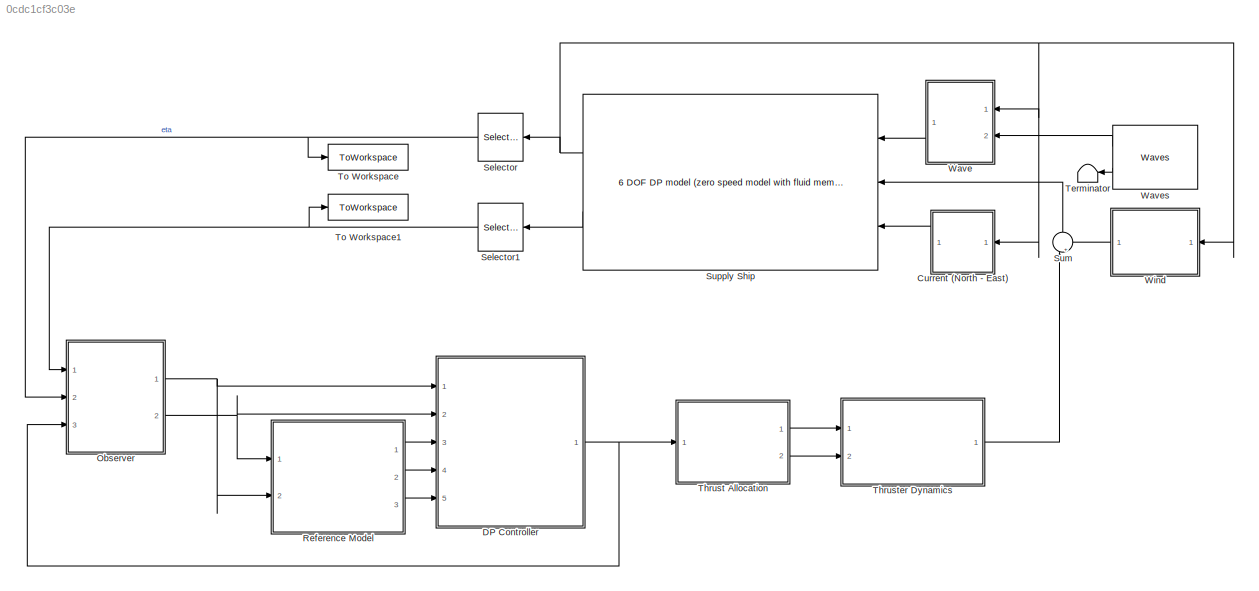
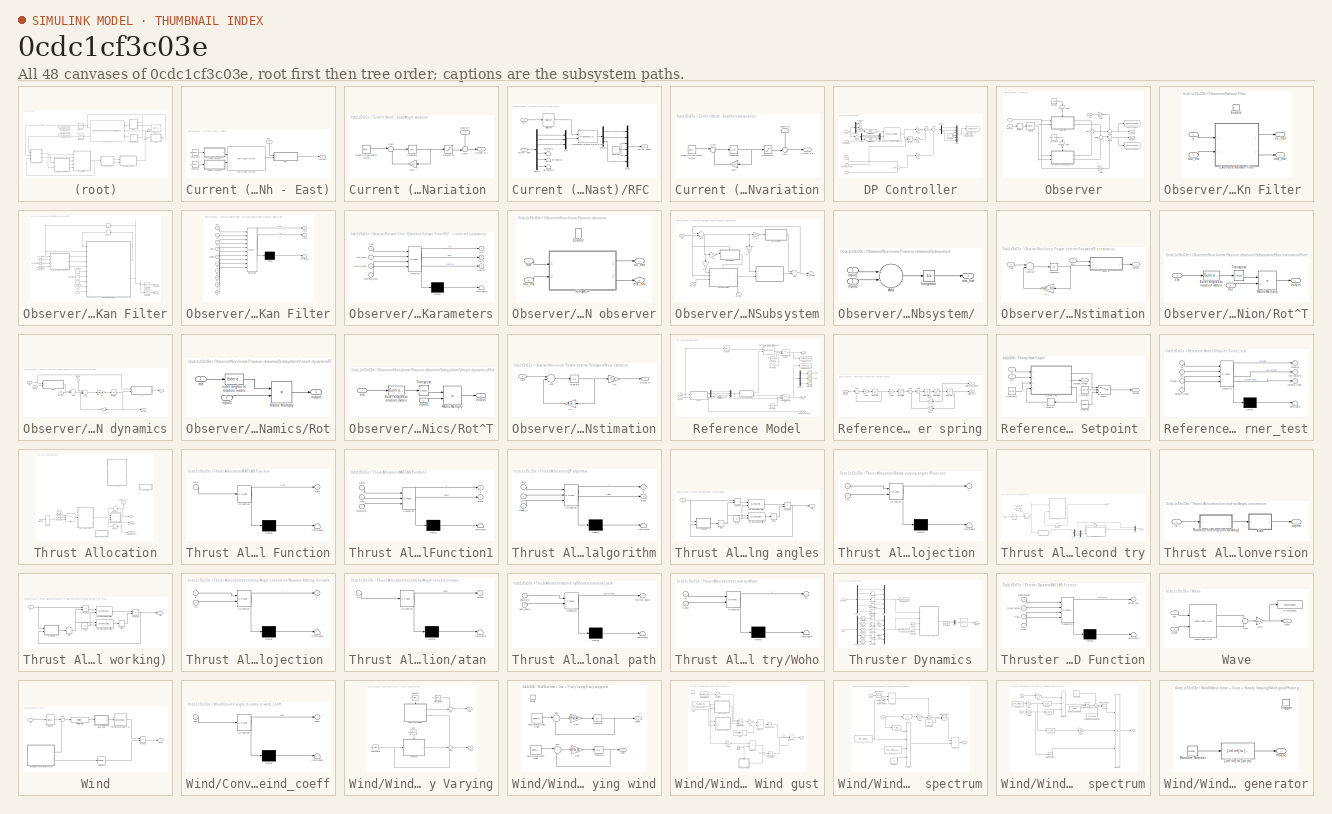
[diagram: thumbnail index - all 48 canvases of the model, root first then tree order]
MODEL slx_0cdc1cf3c03e
KIND model
CONFIG AbsTol = auto
CONFIG EnableMultiTasking = off
CONFIG FixedStep = 0.1
CONFIG MaxStep = auto
CONFIG MinStep = auto
CONFIG RelTol = 1e-3
CONFIG SampleTimeConstraint = Unconstrained
CONFIG Solver = FixedStepAuto
CONFIG SolverName = FixedStepAuto
CONFIG StartTime = 0.0
CONFIG StopTime = 1000
BLOCK [SubSystem] Current (North - East)
  Ports = [1, 1]
  RequestExecContextInheritance = off
BLOCK [SubSystem] Current (North - East)/Angle variation 
  Ports = [1, 1]
  RequestExecContextInheritance = off
BLOCK [Reference] Current (North - East)/Angle variation /Band-Limited White Noise  REF=simulink/Sources/Band-Limited
White Noise
  Ports = [0, 1]
  SourceBlock = simulink/Sources/Band-Limited\nWhite Noise
  SourceProductBaseCode = SL
  SourceProductName = Simulink
  SourceType = Band-Limited White Noise.
BLOCK [Outport] Current (North - East)/Angle variation /Current Dir
  IconDisplay = Port number
BLOCK [Gain] Current (North - East)/Angle variation /Gain
  Gain = 0.001
  OutDataTypeStr = Inherit: Inherit via internal rule
  ParamDataTypeStr = Inherit: Inherit via internal rule
  SaturateOnIntegerOverflow = off
BLOCK [Integrator] Current (North - East)/Angle variation /Integrator
  Ports = [1, 1]
BLOCK [Inport] Current (North - East)/Angle variation /Mean Dir
  IconDisplay = Port number
BLOCK [Saturate] Current (North - East)/Angle variation /Saturation
  InputPortMap = u0
  LowerLimit = -5
  Ports = [1, 1]
  UpperLimit = 5
BLOCK [Sum] Current (North - East)/Angle variation /Sum
  IconShape = round
  InputSameDT = off
  Inputs = |+-
  OutDataTypeStr = Inherit: Inherit via internal rule
  Ports = [2, 1]
  SaturateOnIntegerOverflow = off
BLOCK [Sum] Current (North - East)/Angle variation /Sum1
  IconShape = round
  InputSameDT = off
  Inputs = ++|
  OutDataTypeStr = Inherit: Inherit via internal rule
  Ports = [2, 1]
  SaturateOnIntegerOverflow = off
BLOCK [Constant] Current (North - East)/Constant
  Value = curr_mean_vel
BLOCK [Constant] Current (North - East)/Constant2
  Value = curr_mean_dir
BLOCK [Outport] Current (North - East)/Current
  IconDisplay = Port number
  VectorParamsAs1DForOutWhenUnconnected = off
BLOCK [Reference] Current (North - East)/North-East current  REF=marine_gnc/Environment/Current/North-East current  (lib defined in mdl_10d96c221ba8, mdl_45f1105420c6)
  Ports = [2, 1]
  SourceBlock = marine_gnc/Environment/Current/North-East current
  SourceProductName = MSS GNC
BLOCK [SubSystem] Current (North - East)/RFC 
  Ports = [2, 1]
  RequestExecContextInheritance = off
BLOCK [Constant] Current (North - East)/RFC /Constant
  Value = 0
BLOCK [Outport] Current (North - East)/RFC /Current (Body) 
  IconDisplay = Port number
BLOCK [Inport] Current (North - East)/RFC /Current (NED) 
  IconDisplay = Port number
  Port = 2
BLOCK [Demux] Current (North - East)/RFC /Demux
  DisplayOption = bar
  Outputs = 6
  Ports = [1, 6]
BLOCK [Demux] Current (North - East)/RFC /Demux2
  DisplayOption = bar
  Outputs = 3
  Ports = [1, 3]
BLOCK [Mux] Current (North - East)/RFC /Mux
  DisplayOption = bar
  Inputs = 3
  Ports = [3, 1]
BLOCK [Mux] Current (North - East)/RFC /Mux1
  DisplayOption = bar
  Inputs = 6
  Ports = [6, 1]
BLOCK [Selector] Current (North - East)/RFC /Selector
  IndexOptions = Index vector (dialog)
  Indices = [6]
  InputPortWidth = 6
  OutputSizes = 1
  Ports = [1, 1]
BLOCK [Terminator] Current (North - East)/RFC /Terminator
BLOCK [Terminator] Current (North - East)/RFC /Terminator1
BLOCK [Terminator] Current (North - East)/RFC /Terminator2
BLOCK [Reference] Current (North - East)/RFC /Transposed rotation matrix in yaw  REF=marine_gnc/Models/ Kinematics/Transposed rotation  (lib defined in mdl_10d96c221ba8, mdl_45f1105420c6)
 matrix in yaw
  Ports = [2, 1]
  SourceBlock = marine_gnc/Models/ Kinematics/Transposed rotation\n matrix in yaw
  SourceProductName = MSS GNC
BLOCK [Inport] Current (North - East)/RFC /eta
  IconDisplay = Port number
BLOCK [SubSystem] Current (North - East)/Velocity variation
  Ports = [1, 1]
  RequestExecContextInheritance = off
BLOCK [Reference] Current (North - East)/Velocity variation/Band-Limited White Noise  REF=simulink/Sources/Band-Limited
White Noise
  Ports = [0, 1]
  SourceBlock = simulink/Sources/Band-Limited\nWhite Noise
  SourceProductBaseCode = SL
  SourceProductName = Simulink
  SourceType = Band-Limited White Noise.
BLOCK [Outport] Current (North - East)/Velocity variation/Current Vel
  IconDisplay = Port number
BLOCK [Gain] Current (North - East)/Velocity variation/Gain
  Gain = 0.001
  OutDataTypeStr = Inherit: Inherit via internal rule
  ParamDataTypeStr = Inherit: Inherit via internal rule
  SaturateOnIntegerOverflow = off
BLOCK [Integrator] Current (North - East)/Velocity variation/Integrator
  Ports = [1, 1]
BLOCK [Inport] Current (North - East)/Velocity variation/Mean Vel
  IconDisplay = Port number
BLOCK [Saturate] Current (North - East)/Velocity variation/Saturation
  InputPortMap = u0
  LowerLimit = -0.002
  Ports = [1, 1]
  UpperLimit = 0.002
BLOCK [Sum] Current (North - East)/Velocity variation/Sum
  IconShape = round
  InputSameDT = off
  Inputs = |+-
  OutDataTypeStr = Inherit: Inherit via internal rule
  Ports = [2, 1]
  SaturateOnIntegerOverflow = off
BLOCK [Sum] Current (North - East)/Velocity variation/Sum1
  IconShape = round
  InputSameDT = off
  Inputs = ++|
  OutDataTypeStr = Inherit: Inherit via internal rule
  Ports = [2, 1]
  SaturateOnIntegerOverflow = off
BLOCK [Inport] Current (North - East)/eta
  IconDisplay = Port number
BLOCK [SubSystem] DP Controller
  Ports = [5, 1]
  RequestExecContextInheritance = off
BLOCK [Constant] DP Controller/Constant
  Value = 0
BLOCK [Demux] DP Controller/Demux
  DisplayOption = bar
  Outputs = 3
  Ports = [1, 3]
BLOCK [Demux] DP Controller/Demux1
  DisplayOption = bar
  Outputs = 3
  Ports = [1, 3]
BLOCK [Demux] DP Controller/Demux2
  DisplayOption = bar
  Outputs = 3
  Ports = [1, 3]
BLOCK [Gain] DP Controller/Gain
  Gain = Kd
  OutDataTypeStr = Inherit: Inherit via internal rule
  ParamDataTypeStr = Inherit: Inherit via internal rule
  SaturateOnIntegerOverflow = off
BLOCK [Gain] DP Controller/Gain1
  Gain = Ki
  OutDataTypeStr = Inherit: Inherit via internal rule
  ParamDataTypeStr = Inherit: Inherit via internal rule
  SaturateOnIntegerOverflow = off
BLOCK [Gain] DP Controller/Gain2
  Gain = Kp
  OutDataTypeStr = Inherit: Inherit via internal rule
  ParamDataTypeStr = Inherit: Inherit via internal rule
  SaturateOnIntegerOverflow = off
BLOCK [Integrator] DP Controller/Integrator
  ExternalReset = level hold
  Ports = [2, 1]
BLOCK [Mux] DP Controller/Mux
  DisplayOption = bar
  Inputs = 6
  Ports = [6, 1]
BLOCK [Mux] DP Controller/Mux1
  DisplayOption = bar
  Inputs = 3
  Ports = [3, 1]
BLOCK [Inport] DP Controller/Ref Vel 
  IconDisplay = Port number
  Port = 4
BLOCK [Sum] DP Controller/Sum
  IconShape = round
  InputSameDT = off
  Inputs = |++
  OutDataTypeStr = Inherit: Inherit via internal rule
  Ports = [2, 1]
  SaturateOnIntegerOverflow = off
BLOCK [Sum] DP Controller/Sum1
  IconShape = round
  InputSameDT = off
  Inputs = |++
  OutDataTypeStr = Inherit: Inherit via internal rule
  Ports = [2, 1]
  SaturateOnIntegerOverflow = off
BLOCK [Sum] DP Controller/Sum2
  IconShape = round
  InputSameDT = off
  Inputs = |-+
  OutDataTypeStr = Inherit: Inherit via internal rule
  Ports = [2, 1]
  SaturateOnIntegerOverflow = off
BLOCK [Sum] DP Controller/Sum3
  IconShape = round
  InputSameDT = off
  Inputs = +|-
  OutDataTypeStr = Inherit: Inherit via internal rule
  Ports = [2, 1]
  SaturateOnIntegerOverflow = off
BLOCK [Terminator] DP Controller/Terminator
BLOCK [Terminator] DP Controller/Terminator1
BLOCK [ToWorkspace] DP Controller/To Workspace
  FixptAsFi = on
  MaxDataPoints = inf
  Ports = [1]
  SampleTime = -1
  VariableName = controller_force_out
BLOCK [Reference] DP Controller/Transposed rotation matrix in yaw  REF=marine_gnc/Models/ Kinematics/Transposed rotation  (lib defined in mdl_10d96c221ba8, mdl_45f1105420c6)
 matrix in yaw
  Ports = [2, 1]
  SourceBlock = marine_gnc/Models/ Kinematics/Transposed rotation\n matrix in yaw
  SourceProductName = MSS GNC
BLOCK [Reference] DP Controller/[-inf inf] to [-pi pi]1  REF=marine_gnc/Utilities/Math Operations/[-inf inf] to [-pi pi]  (lib defined in mdl_10d96c221ba8, mdl_45f1105420c6)
  Ports = [1, 1]
  SourceBlock = marine_gnc/Utilities/Math Operations/[-inf inf] to [-pi pi]
  SourceProductName = MSS GNC
  SourceType = [-inf inf] to [-pi pi]
BLOCK [Reference] DP Controller/[-inf inf] to [-pi pi]2  REF=marine_gnc/Utilities/Math Operations/[-inf inf] to [-pi pi]  (lib defined in mdl_10d96c221ba8, mdl_45f1105420c6)
  Ports = [1, 1]
  SourceBlock = marine_gnc/Utilities/Math Operations/[-inf inf] to [-pi pi]
  SourceProductName = MSS GNC
  SourceType = [-inf inf] to [-pi pi]
BLOCK [Inport] DP Controller/eta
  IconDisplay = Port number
  Port = 2
  PortDimensions = 3
BLOCK [Inport] DP Controller/eta set point
  IconDisplay = Port number
  Port = 3
BLOCK [Inport] DP Controller/nu
  IconDisplay = Port number
  PortDimensions = 3
BLOCK [Inport] DP Controller/setpoint_change
  IconDisplay = Port number
  Port = 5
BLOCK [Outport] DP Controller/tau (body frame)
  IconDisplay = Port number
  VectorParamsAs1DForOutWhenUnconnected = off
BLOCK [SubSystem] Observer
  Ports = [3, 2]
  RequestExecContextInheritance = off
BLOCK [Constant] Observer/Constant
  Value = use_kalman
BLOCK [Constant] Observer/Constant1
  Value = 1-use_kalman
BLOCK [Gain] Observer/Gain1
  Gain = observer_on
  OutDataTypeStr = Inherit: Inherit via internal rule
  ParamDataTypeStr = Inherit: Inherit via internal rule
  SaturateOnIntegerOverflow = off
BLOCK [Gain] Observer/Gain2
  Gain = observer_on
  OutDataTypeStr = Inherit: Inherit via internal rule
  ParamDataTypeStr = Inherit: Inherit via internal rule
  SaturateOnIntegerOverflow = off
BLOCK [Gain] Observer/Gain6
  Gain = 1-observer_on
  OutDataTypeStr = Inherit: Inherit via internal rule
  ParamDataTypeStr = Inherit: Inherit via internal rule
  SaturateOnIntegerOverflow = off
BLOCK [Gain] Observer/Gain7
  Gain = 1-observer_on
  OutDataTypeStr = Inherit: Inherit via internal rule
  ParamDataTypeStr = Inherit: Inherit via internal rule
  SaturateOnIntegerOverflow = off
BLOCK [SubSystem] Observer/Kalman Filter 
  Ports = [2, 2, 1]
  RequestExecContextInheritance = off
BLOCK [EnablePort] Observer/Kalman Filter /Enable
  Ports = []
  StatesWhenEnabling = reset
BLOCK [SubSystem] Observer/Kalman Filter /Extended Kalman Filter
  Ports = [2, 2]
  RequestExecContextInheritance = off
BLOCK [Constant] Observer/Kalman Filter /Extended Kalman Filter/Constant
  Value = Q
BLOCK [Constant] Observer/Kalman Filter /Extended Kalman Filter/Constant1
  Value = R_KF
BLOCK [Constant] Observer/Kalman Filter /Extended Kalman Filter/Constant2
  Value = H
BLOCK [Constant] Observer/Kalman Filter /Extended Kalman Filter/Constant3
  Value = Phi_stack
BLOCK [Constant] Observer/Kalman Filter /Extended Kalman Filter/Constant4
  Value = Delta_stack
BLOCK [Constant] Observer/Kalman Filter /Extended Kalman Filter/Constant5
  Value = Gamma_stack
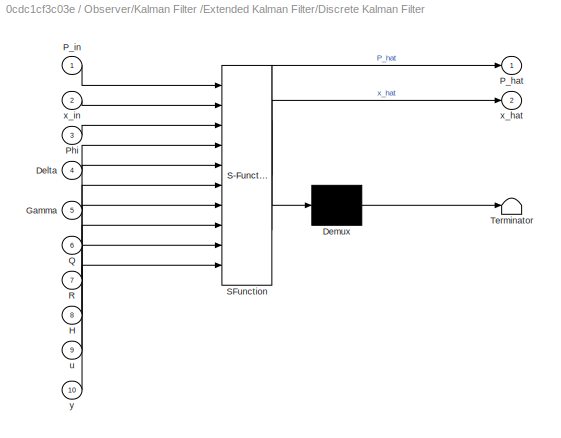
BLOCK [SubSystem] Observer/Kalman Filter /Extended Kalman Filter/Discrete Kalman Filter
  ErrorFcn = Stateflow.Translate.translate
  PermitHierarchicalResolution = ExplicitOnly
  Ports = [10, 2]
  RequestExecContextInheritance = off
  SFBlockType = MATLAB Function
  TreatAsAtomicUnit = on
BLOCK [Demux] Observer/Kalman Filter /Extended Kalman Filter/Discrete Kalman Filter/ Demux 
  DisplayOption = bar
  Outputs = 1
  Ports = [1, 1]
BLOCK [S-Function] Observer/Kalman Filter /Extended Kalman Filter/Discrete Kalman Filter/ SFunction 
  EnableBusSupport = on
  FunctionName = sf_sfun
  PortCounts = [10 3]
  Ports = [10, 3]
  SFcnIsStateOwnerBlock = off
  SFunctionDeploymentMode = off
  Tag = Stateflow S-Function 3
BLOCK [Terminator] Observer/Kalman Filter /Extended Kalman Filter/Discrete Kalman Filter/ Terminator 
BLOCK [Inport] Observer/Kalman Filter /Extended Kalman Filter/Discrete Kalman Filter/Delta
  IconDisplay = Port number
  Port = 4
BLOCK [Inport] Observer/Kalman Filter /Extended Kalman Filter/Discrete Kalman Filter/Gamma
  IconDisplay = Port number
  Port = 5
BLOCK [Inport] Observer/Kalman Filter /Extended Kalman Filter/Discrete Kalman Filter/H
  IconDisplay = Port number
  Port = 8
BLOCK [Outport] Observer/Kalman Filter /Extended Kalman Filter/Discrete Kalman Filter/P_hat
  IconDisplay = Port number
BLOCK [Inport] Observer/Kalman Filter /Extended Kalman Filter/Discrete Kalman Filter/P_in
  IconDisplay = Port number
BLOCK [Inport] Observer/Kalman Filter /Extended Kalman Filter/Discrete Kalman Filter/Phi
  IconDisplay = Port number
  Port = 3
BLOCK [Inport] Observer/Kalman Filter /Extended Kalman Filter/Discrete Kalman Filter/Q
  IconDisplay = Port number
  Port = 6
BLOCK [Inport] Observer/Kalman Filter /Extended Kalman Filter/Discrete Kalman Filter/R
  IconDisplay = Port number
  Port = 7
BLOCK [Inport] Observer/Kalman Filter /Extended Kalman Filter/Discrete Kalman Filter/u
  IconDisplay = Port number
  Port = 9
BLOCK [Outport] Observer/Kalman Filter /Extended Kalman Filter/Discrete Kalman Filter/x_hat
  IconDisplay = Port number
  Port = 2
BLOCK [Inport] Observer/Kalman Filter /Extended Kalman Filter/Discrete Kalman Filter/x_in
  IconDisplay = Port number
  Port = 2
BLOCK [Inport] Observer/Kalman Filter /Extended Kalman Filter/Discrete Kalman Filter/y
  IconDisplay = Port number
  Port = 10
BLOCK [SubSystem] Observer/Kalman Filter /Extended Kalman Filter/EKF - Linearized parameters
  ErrorFcn = Stateflow.Translate.translate
  PermitHierarchicalResolution = ExplicitOnly
  Ports = [4, 3]
  RequestExecContextInheritance = off
  SFBlockType = MATLAB Function
  TreatAsAtomicUnit = on
BLOCK [Demux] Observer/Kalman Filter /Extended Kalman Filter/EKF - Linearized parameters/ Demux 
  Outputs = 1
  Ports = [1, 1]
BLOCK [S-Function] Observer/Kalman Filter /Extended Kalman Filter/EKF - Linearized parameters/ SFunction 
  EnableBusSupport = on
  FunctionName = sf_sfun
  PortCounts = [4 4]
  Ports = [4, 4]
  SFcnIsStateOwnerBlock = off
  SFunctionDeploymentMode = off
  Tag = Stateflow S-Function 13
BLOCK [Terminator] Observer/Kalman Filter /Extended Kalman Filter/EKF - Linearized parameters/ Terminator 
BLOCK [Outport] Observer/Kalman Filter /Extended Kalman Filter/EKF - Linearized parameters/Delta
  IconDisplay = Port number
  Port = 2
BLOCK [Inport] Observer/Kalman Filter /Extended Kalman Filter/EKF - Linearized parameters/Delta_stack
  IconDisplay = Port number
  Port = 3
BLOCK [Outport] Observer/Kalman Filter /Extended Kalman Filter/EKF - Linearized parameters/Gamma
  IconDisplay = Port number
  Port = 3
BLOCK [Inport] Observer/Kalman Filter /Extended Kalman Filter/EKF - Linearized parameters/Gamma_stack
  IconDisplay = Port number
  Port = 4
BLOCK [Outport] Observer/Kalman Filter /Extended Kalman Filter/EKF - Linearized parameters/Phi
  IconDisplay = Port number
BLOCK [Inport] Observer/Kalman Filter /Extended Kalman Filter/EKF - Linearized parameters/Phi_stack
  IconDisplay = Port number
  Port = 2
BLOCK [Inport] Observer/Kalman Filter /Extended Kalman Filter/EKF - Linearized parameters/x_hat
  IconDisplay = Port number
BLOCK [Memory] Observer/Kalman Filter /Extended Kalman Filter/Memory
  InitialCondition = zeros(1,15)
BLOCK [Memory] Observer/Kalman Filter /Extended Kalman Filter/Memory1
  InitialCondition = eye(15)*0.9
BLOCK [Selector] Observer/Kalman Filter /Extended Kalman Filter/Selector
  IndexOptions = Index vector (dialog)
  Indices = [13 14 15]
  InputPortWidth = 15
  OutputSizes = 1
  Ports = [1, 1]
BLOCK [Selector] Observer/Kalman Filter /Extended Kalman Filter/Selector1
  IndexOptions = Index vector (dialog)
  Indices = [7 8 9 ]
  InputPortWidth = 15
  OutputSizes = 1
  Ports = [1, 1]
BLOCK [Outport] Observer/Kalman Filter /Extended Kalman Filter/eta_hat
  IconDisplay = Port number
  Port = 2
BLOCK [Outport] Observer/Kalman Filter /Extended Kalman Filter/nu_hat
  IconDisplay = Port number
BLOCK [Inport] Observer/Kalman Filter /Extended Kalman Filter/u
  IconDisplay = Port number
  Port = 2
BLOCK [Inport] Observer/Kalman Filter /Extended Kalman Filter/y
  IconDisplay = Port number
BLOCK [Outport] Observer/Kalman Filter /eta_hat
  IconDisplay = Port number
  Port = 2
BLOCK [Outport] Observer/Kalman Filter /nu_hat
  IconDisplay = Port number
BLOCK [Inport] Observer/Kalman Filter /tau_est
  IconDisplay = Port number
  Port = 2
BLOCK [Inport] Observer/Kalman Filter /y
  IconDisplay = Port number
BLOCK [Memory] Observer/Memory
BLOCK [SubSystem] Observer/Non-linear Passive observer
  Commented = on
  Ports = [2, 2, 1]
  RequestExecContextInheritance = off
BLOCK [EnablePort] Observer/Non-linear Passive observer/Enable
  Ports = []
  StatesWhenEnabling = reset
BLOCK [SubSystem] Observer/Non-linear Passive observer/Subsystem
  Ports = [2, 2]
  RequestExecContextInheritance = off
BLOCK [SubSystem] Observer/Non-linear Passive observer/Subsystem/ 
  Ports = [2, 1]
  RequestExecContextInheritance = off
BLOCK [Sum] Observer/Non-linear Passive observer/Subsystem/ /Add
  InputSameDT = off
  OutDataTypeStr = Inherit: Inherit via internal rule
  Ports = [2, 1]
  SaturateOnIntegerOverflow = off
BLOCK [Integrator] Observer/Non-linear Passive observer/Subsystem/ /Integrator
  Ports = [1, 1]
BLOCK [Outport] Observer/Non-linear Passive observer/Subsystem/ /eta_hat
  IconDisplay = Port number
BLOCK [Inport] Observer/Non-linear Passive observer/Subsystem/ /input1
  IconDisplay = Port number
BLOCK [Inport] Observer/Non-linear Passive observer/Subsystem/ /input2
  IconDisplay = Port number
  Port = 2
BLOCK [Sum] Observer/Non-linear Passive observer/Subsystem/Add
  InputSameDT = off
  OutDataTypeStr = Inherit: Inherit via internal rule
  Ports = [2, 1]
  SaturateOnIntegerOverflow = off
BLOCK [Sum] Observer/Non-linear Passive observer/Subsystem/Add1
  InputSameDT = off
  Inputs = -+
  OutDataTypeStr = Inherit: Inherit via internal rule
  Ports = [2, 1]
  SaturateOnIntegerOverflow = off
BLOCK [SubSystem] Observer/Non-linear Passive observer/Subsystem/Bias estimation
  PortSchema = {"entries":[{"content":{"sides":[{"content":{"connectorIds":["In1"]},"type":"ConnectorPlacement.EquallySpacedRectSide","uuid":"fb609290-747b-4f88-a1dd-5b79b9706ab7"},{"content":{"connectorIds":["Out1"],"side":"RIGHT"},"type":"ConnectorPlacement.EquallySpacedRectSide","uuid":"4016d859-7bbf-446e-85bc-2c5f4265ad24"},{"content":{"connectorIds":["In2"],"side":"TOP"},"type":"ConnectorPlacement.EquallySp...<+247ch>
  Ports = [2, 1]
  RequestExecContextInheritance = off
BLOCK [Integrator] Observer/Non-linear Passive observer/Subsystem/Bias estimation/Integrator
  Ports = [1, 1]
BLOCK [SubSystem] Observer/Non-linear Passive observer/Subsystem/Bias estimation/Rot^T
  Ports = [2, 1]
  RequestExecContextInheritance = off
BLOCK [Reference] Observer/Non-linear Passive observer/Subsystem/Bias estimation/Rot^T/Euler angles to rotation matrix  REF=marine_gnc/Models/ Kinematics/Euler angles to  (lib defined in mdl_10d96c221ba8, mdl_45f1105420c6)
rotation matrix
  Ports = [1, 1]
  SourceBlock = marine_gnc/Models/ Kinematics/Euler angles to\nrotation matrix
  SourceProductName = MSS GNC
  SourceType = Euler2R
BLOCK [Inport] Observer/Non-linear Passive observer/Subsystem/Bias estimation/Rot^T/In2
  IconDisplay = Port number
  Port = 2
BLOCK [Product] Observer/Non-linear Passive observer/Subsystem/Bias estimation/Rot^T/Matrix Multiply
  InputSameDT = off
  Multiplication = Matrix(*)
  OutDataTypeStr = Inherit: Inherit via internal rule
  Ports = [2, 1]
  RndMeth = Floor
  SaturateOnIntegerOverflow = off
BLOCK [Math] Observer/Non-linear Passive observer/Subsystem/Bias estimation/Rot^T/Transpose
  Operator = transpose
  Ports = [1, 1]
  SignedPower = off
BLOCK [Inport] Observer/Non-linear Passive observer/Subsystem/Bias estimation/Rot^T/eta
  IconDisplay = Port number
BLOCK [Outport] Observer/Non-linear Passive observer/Subsystem/Bias estimation/Rot^T/output
  IconDisplay = Port number
BLOCK [Sum] Observer/Non-linear Passive observer/Subsystem/Bias estimation/Subtract
  InputSameDT = off
  Inputs = +-
  OutDataTypeStr = Inherit: Inherit via internal rule
  Ports = [2, 1]
  SaturateOnIntegerOverflow = off
BLOCK [Gain] Observer/Non-linear Passive observer/Subsystem/Bias estimation/T^-1
  Gain = inv(T_b)
  Multiplication = Matrix(K*u)
  OutDataTypeStr = Inherit: Inherit via internal rule
  ParamDataTypeStr = Inherit: Inherit via internal rule
  SaturateOnIntegerOverflow = off
BLOCK [Inport] Observer/Non-linear Passive observer/Subsystem/Bias estimation/eta
  IconDisplay = Port number
  Port = 2
BLOCK [Inport] Observer/Non-linear Passive observer/Subsystem/Bias estimation/input
  IconDisplay = Port number
BLOCK [Outport] Observer/Non-linear Passive observer/Subsystem/Bias estimation/output
  IconDisplay = Port number
BLOCK [Gain] Observer/Non-linear Passive observer/Subsystem/K1
  Gain = K1
  Multiplication = Matrix(K*u)
  OutDataTypeStr = Inherit: Inherit via internal rule
  ParamDataTypeStr = Inherit: Inherit via internal rule
  SaturateOnIntegerOverflow = off
BLOCK [Gain] Observer/Non-linear Passive observer/Subsystem/K2
  Gain = K2
  Multiplication = Matrix(K*u)
  OutDataTypeStr = Inherit: Inherit via internal rule
  ParamDataTypeStr = Inherit: Inherit via internal rule
  SaturateOnIntegerOverflow = off
BLOCK [Gain] Observer/Non-linear Passive observer/Subsystem/K3
  Gain = K3
  Multiplication = Matrix(K*u)
  OutDataTypeStr = Inherit: Inherit via internal rule
  ParamDataTypeStr = Inherit: Inherit via internal rule
  SaturateOnIntegerOverflow = off
BLOCK [Gain] Observer/Non-linear Passive observer/Subsystem/K4
  Gain = K4
  Multiplication = Matrix(K*u)
  OutDataTypeStr = Inherit: Inherit via internal rule
  ParamDataTypeStr = Inherit: Inherit via internal rule
  SaturateOnIntegerOverflow = off
BLOCK [SubSystem] Observer/Non-linear Passive observer/Subsystem/Vessel dynamics
  PortSchema = {"entries":[{"content":{"sides":[{"content":{"connectorIds":["In1","In2","In3"]},"type":"ConnectorPlacement.EquallySpacedRectSide","uuid":"8c38ab18-b34d-4500-9674-9470dff34018"},{"content":{"connectorIds":["Out1"],"side":"RIGHT"},"type":"ConnectorPlacement.EquallySpacedRectSide","uuid":"47c03509-189c-40d1-8765-b41afcba396b"},{"content":{"connectorIds":["In4"],"side":"TOP"},"type":"ConnectorPlaceme...<+409ch>
  Ports = [4, 2]
  RequestExecContextInheritance = off
BLOCK [Sum] Observer/Non-linear Passive observer/Subsystem/Vessel dynamics/Add
  InputSameDT = off
  OutDataTypeStr = Inherit: Inherit via internal rule
  Ports = [2, 1]
  SaturateOnIntegerOverflow = off
BLOCK [Sum] Observer/Non-linear Passive observer/Subsystem/Vessel dynamics/Add1
  InputSameDT = off
  Inputs = ++-
  OutDataTypeStr = Inherit: Inherit via internal rule
  Ports = [3, 1]
  SaturateOnIntegerOverflow = off
BLOCK [Gain] Observer/Non-linear Passive observer/Subsystem/Vessel dynamics/D
  Gain = D
  Multiplication = Matrix(K*u)
  OutDataTypeStr = Inherit: Inherit via internal rule
  ParamDataTypeStr = Inherit: Inherit via internal rule
  SaturateOnIntegerOverflow = off
BLOCK [Integrator] Observer/Non-linear Passive observer/Subsystem/Vessel dynamics/Integrator
  Ports = [1, 1]
BLOCK [Gain] Observer/Non-linear Passive observer/Subsystem/Vessel dynamics/M^-1
  Gain = inv(M)
  Multiplication = Matrix(K*u)
  OutDataTypeStr = Inherit: Inherit via internal rule
  ParamDataTypeStr = Inherit: Inherit via internal rule
  SaturateOnIntegerOverflow = off
BLOCK [SubSystem] Observer/Non-linear Passive observer/Subsystem/Vessel dynamics/Rot
  Ports = [2, 1]
  RequestExecContextInheritance = off
BLOCK [Product] Observer/Non-linear Passive observer/Subsystem/Vessel dynamics/Rot/Matrix Multiply
  InputSameDT = off
  Multiplication = Matrix(*)
  OutDataTypeStr = Inherit: Inherit via internal rule
  Ports = [2, 1]
  RndMeth = Floor
  SaturateOnIntegerOverflow = off
BLOCK [Inport] Observer/Non-linear Passive observer/Subsystem/Vessel dynamics/Rot/eta
  IconDisplay = Port number
BLOCK [Reference] Observer/Non-linear Passive observer/Subsystem/Vessel dynamics/Rot/euler angles to rotation matrix  REF=marine_gnc/Models/ Kinematics/Euler angles to  (lib defined in mdl_10d96c221ba8, mdl_45f1105420c6)
rotation matrix
  Ports = [1, 1]
  SourceBlock = marine_gnc/Models/ Kinematics/Euler angles to\nrotation matrix
  SourceProductName = MSS GNC
  SourceType = Euler2R
BLOCK [Inport] Observer/Non-linear Passive observer/Subsystem/Vessel dynamics/Rot/input1
  IconDisplay = Port number
  Port = 2
BLOCK [Outport] Observer/Non-linear Passive observer/Subsystem/Vessel dynamics/Rot/output
  IconDisplay = Port number
BLOCK [SubSystem] Observer/Non-linear Passive observer/Subsystem/Vessel dynamics/Rot^T
  Ports = [2, 1]
  RequestExecContextInheritance = off
BLOCK [Reference] Observer/Non-linear Passive observer/Subsystem/Vessel dynamics/Rot^T/Euler angles to rotation matrix  REF=marine_gnc/Models/ Kinematics/Euler angles to  (lib defined in mdl_10d96c221ba8, mdl_45f1105420c6)
rotation matrix
  Ports = [1, 1]
  SourceBlock = marine_gnc/Models/ Kinematics/Euler angles to\nrotation matrix
  SourceProductName = MSS GNC
  SourceType = Euler2R
BLOCK [Product] Observer/Non-linear Passive observer/Subsystem/Vessel dynamics/Rot^T/Matrix Multiply
  InputSameDT = off
  Multiplication = Matrix(*)
  OutDataTypeStr = Inherit: Inherit via internal rule
  Ports = [2, 1]
  RndMeth = Floor
  SaturateOnIntegerOverflow = off
BLOCK [Math] Observer/Non-linear Passive observer/Subsystem/Vessel dynamics/Rot^T/Transpose
  Operator = transpose
  Ports = [1, 1]
  SignedPower = off
BLOCK [Inport] Observer/Non-linear Passive observer/Subsystem/Vessel dynamics/Rot^T/eta
  IconDisplay = Port number
BLOCK [Inport] Observer/Non-linear Passive observer/Subsystem/Vessel dynamics/Rot^T/input1
  IconDisplay = Port number
  Port = 2
BLOCK [Outport] Observer/Non-linear Passive observer/Subsystem/Vessel dynamics/Rot^T/output
  IconDisplay = Port number
BLOCK [Inport] Observer/Non-linear Passive observer/Subsystem/Vessel dynamics/eta
  IconDisplay = Port number
  Port = 2
BLOCK [Inport] Observer/Non-linear Passive observer/Subsystem/Vessel dynamics/input1
  IconDisplay = Port number
BLOCK [Inport] Observer/Non-linear Passive observer/Subsystem/Vessel dynamics/input3
  IconDisplay = Port number
  Port = 4
BLOCK [Outport] Observer/Non-linear Passive observer/Subsystem/Vessel dynamics/nu_hat
  IconDisplay = Port number
  Port = 2
BLOCK [Outport] Observer/Non-linear Passive observer/Subsystem/Vessel dynamics/out
  IconDisplay = Port number
BLOCK [Inport] Observer/Non-linear Passive observer/Subsystem/Vessel dynamics/tau_est
  IconDisplay = Port number
  Port = 3
BLOCK [SubSystem] Observer/Non-linear Passive observer/Subsystem/Wave estimation
  Ports = [1, 1]
  RequestExecContextInheritance = off
BLOCK [Sum] Observer/Non-linear Passive observer/Subsystem/Wave estimation/Add
  InputSameDT = off
  OutDataTypeStr = Inherit: Inherit via internal rule
  Ports = [2, 1]
  SaturateOnIntegerOverflow = off
BLOCK [Gain] Observer/Non-linear Passive observer/Subsystem/Wave estimation/Aw
  Gain = A_w
  Multiplication = Matrix(K*u)
  OutDataTypeStr = Inherit: Inherit via internal rule
  ParamDataTypeStr = Inherit: Inherit via internal rule
  SaturateOnIntegerOverflow = off
BLOCK [Gain] Observer/Non-linear Passive observer/Subsystem/Wave estimation/Cw
  Gain = C_w
  Multiplication = Matrix(K*u)
  OutDataTypeStr = Inherit: Inherit via internal rule
  ParamDataTypeStr = Inherit: Inherit via internal rule
  SaturateOnIntegerOverflow = off
BLOCK [Integrator] Observer/Non-linear Passive observer/Subsystem/Wave estimation/Integrator
  Ports = [1, 1]
BLOCK [Outport] Observer/Non-linear Passive observer/Subsystem/Wave estimation/eta_hat_w
  IconDisplay = Port number
BLOCK [Inport] Observer/Non-linear Passive observer/Subsystem/Wave estimation/input
  IconDisplay = Port number
BLOCK [Inport] Observer/Non-linear Passive observer/Subsystem/eta
  IconDisplay = Port number
BLOCK [Outport] Observer/Non-linear Passive observer/Subsystem/eta_hat_total
  IconDisplay = Port number
  Port = 2
BLOCK [Outport] Observer/Non-linear Passive observer/Subsystem/nu_hat
  IconDisplay = Port number
BLOCK [Inport] Observer/Non-linear Passive observer/Subsystem/tau_est
  IconDisplay = Port number
  Port = 2
BLOCK [Inport] Observer/Non-linear Passive observer/eta
  IconDisplay = Port number
BLOCK [Outport] Observer/Non-linear Passive observer/eta_hat
  IconDisplay = Port number
  Port = 2
BLOCK [Outport] Observer/Non-linear Passive observer/nu_hat
  IconDisplay = Port number
BLOCK [Inport] Observer/Non-linear Passive observer/tau_est
  IconDisplay = Port number
  Port = 2
BLOCK [Selector] Observer/Selector
  IndexOptions = Index vector (dialog)
  Indices = [1 2 6]
  InputPortWidth = 6
  OutputSizes = 1
  Ports = [1, 1]
BLOCK [Sum] Observer/Sum
  IconShape = round
  InputSameDT = off
  Inputs = +|+
  OutDataTypeStr = Inherit: Inherit via internal rule
  Ports = [2, 1]
  SaturateOnIntegerOverflow = off
BLOCK [Sum] Observer/Sum1
  IconShape = round
  InputSameDT = off
  Inputs = +|+
  OutDataTypeStr = Inherit: Inherit via internal rule
  Ports = [2, 1]
  SaturateOnIntegerOverflow = off
BLOCK [Sum] Observer/Sum2
  IconShape = round
  InputSameDT = off
  Inputs = |++
  OutDataTypeStr = Inherit: Inherit via internal rule
  Ports = [2, 1]
  SaturateOnIntegerOverflow = off
BLOCK [Sum] Observer/Sum3
  IconShape = round
  InputSameDT = off
  Inputs = ++|
  OutDataTypeStr = Inherit: Inherit via internal rule
  Ports = [2, 1]
  SaturateOnIntegerOverflow = off
BLOCK [ToWorkspace] Observer/To Workspace
  FixptAsFi = on
  MaxDataPoints = inf
  Ports = [1]
  SampleTime = -1
  VariableName = nu_hat_out
BLOCK [ToWorkspace] Observer/To Workspace1
  FixptAsFi = on
  MaxDataPoints = inf
  Ports = [1]
  SampleTime = -1
  VariableName = eta_hat_out
BLOCK [Outport] Observer/eta_hat
  IconDisplay = Port number
  Port = 2
  VectorParamsAs1DForOutWhenUnconnected = off
BLOCK [Outport] Observer/nu_hat
  IconDisplay = Port number
  VectorParamsAs1DForOutWhenUnconnected = off
BLOCK [Inport] Observer/tau_est
  IconDisplay = Port number
  Port = 3
BLOCK [Inport] Observer/y
  IconDisplay = Port number
  Port = 2
BLOCK [Inport] Observer/y_dot
  IconDisplay = Port number
BLOCK [SubSystem] Reference Model
  Ports = [2, 3]
  RequestExecContextInheritance = off
BLOCK [Constant] Reference Model/Constant
  Value = ref_model_on
BLOCK [Constant] Reference Model/Constant1
  Value = ref_model_on
BLOCK [Constant] Reference Model/Constant2
  Value = 0
BLOCK [Demux] Reference Model/Demux
  DisplayOption = bar
  Outputs = 3
  Ports = [1, 3]
BLOCK [Demux] Reference Model/Demux1
  Commented = on
  DisplayOption = bar
  Outputs = 3
  Ports = [1, 3]
BLOCK [SubSystem] Reference Model/Mass damper spring
  Ports = [1, 2]
  RequestExecContextInheritance = off
BLOCK [Gain] Reference Model/Mass damper spring/Gain
  Gain = w_n
  OutDataTypeStr = Inherit: Inherit via internal rule
  ParamDataTypeStr = Inherit: Inherit via internal rule
  SaturateOnIntegerOverflow = off
BLOCK [Gain] Reference Model/Mass damper spring/Gain1
  Gain = w_n.^2
  OutDataTypeStr = Inherit: Inherit via internal rule
  ParamDataTypeStr = Inherit: Inherit via internal rule
  SaturateOnIntegerOverflow = off
BLOCK [Gain] Reference Model/Mass damper spring/Gain2
  Gain = w_n.^2
  OutDataTypeStr = Inherit: Inherit via internal rule
  ParamDataTypeStr = Inherit: Inherit via internal rule
  SaturateOnIntegerOverflow = off
BLOCK [Gain] Reference Model/Mass damper spring/Gain3
  Gain = 2*w_n.*zeta
  OutDataTypeStr = Inherit: Inherit via internal rule
  ParamDataTypeStr = Inherit: Inherit via internal rule
  SaturateOnIntegerOverflow = off
BLOCK [Integrator] Reference Model/Mass damper spring/Integrator
  Ports = [1, 1]
BLOCK [Integrator] Reference Model/Mass damper spring/Integrator1
  Ports = [1, 1]
BLOCK [Integrator] Reference Model/Mass damper spring/Integrator2
  Ports = [1, 1]
BLOCK [Outport] Reference Model/Mass damper spring/Reference 
  IconDisplay = Port number
  Port = 2
BLOCK [Outport] Reference Model/Mass damper spring/Reference Velocity 
  IconDisplay = Port number
BLOCK [Saturate] Reference Model/Mass damper spring/Saturation
  InputPortMap = u0
  LowerLimit = -25
  Ports = [1, 1]
  UpperLimit = 25
BLOCK [Saturate] Reference Model/Mass damper spring/Saturation1
  InputPortMap = u0
  LowerLimit = -25
  Ports = [1, 1]
  UpperLimit = 25
BLOCK [Inport] Reference Model/Mass damper spring/Setpoint 
  IconDisplay = Port number
BLOCK [Sum] Reference Model/Mass damper spring/Sum
  IconShape = round
  InputSameDT = off
  Inputs = |+-
  OutDataTypeStr = Inherit: Inherit via internal rule
  Ports = [2, 1]
  SaturateOnIntegerOverflow = off
BLOCK [Sum] Reference Model/Mass damper spring/Sum1
  IconShape = round
  InputSameDT = off
  Inputs = |+-
  OutDataTypeStr = Inherit: Inherit via internal rule
  Ports = [2, 1]
  SaturateOnIntegerOverflow = off
BLOCK [Sum] Reference Model/Mass damper spring/Sum2
  IconShape = round
  InputSameDT = off
  Inputs = |+-
  OutDataTypeStr = Inherit: Inherit via internal rule
  Ports = [2, 1]
  SaturateOnIntegerOverflow = off
BLOCK [Mux] Reference Model/Mux
  DisplayOption = bar
  Inputs = 3
  Ports = [3, 1]
BLOCK [Outport] Reference Model/Ref 
  IconDisplay = Port number
  VectorParamsAs1DForOutWhenUnconnected = off
BLOCK [Outport] Reference Model/Ref Vel 
  IconDisplay = Port number
  Port = 2
  VectorParamsAs1DForOutWhenUnconnected = off
BLOCK [Scope] Reference Model/Scope
  Commented = on
  Floating = off
  NumInputPorts = 1
  Ports = [1]
  ScopeSpecificationString = Simulink.scopes.TimeScopeBlockCfg('CurrentConfiguration', extmgr.ConfigurationSet(extmgr.Configuration('Core','General UI',true),extmgr.Configuration('Core','Source UI',true),extmgr.Configuration('Sources','WiredSimulink',true,'DataLoggingVariableName','ScopeData1'),extmgr.Configuration('Visuals','Time Domain',true,'SerializedDisplays',{struct('MinYLimReal','-56.25','MaxYLimReal','6.25','YLabelRea...<+1353ch>
BLOCK [Scope] Reference Model/Scope1
  Commented = on
  Floating = off
  NumInputPorts = 1
  Ports = [1]
  ScopeSpecificationString = Simulink.scopes.TimeScopeBlockCfg('CurrentConfiguration', extmgr.ConfigurationSet(extmgr.Configuration('Core','General UI',true),extmgr.Configuration('Core','Source UI',true),extmgr.Configuration('Sources','WiredSimulink',true,'DataLoggingVariableName','ScopeData2'),extmgr.Configuration('Visuals','Time Domain',true,'SerializedDisplays',{struct('MinYLimReal','-6.25','MaxYLimReal','56.25','YLabelRea...<+1376ch>
BLOCK [Scope] Reference Model/Scope2
  Commented = on
  Floating = off
  NumInputPorts = 1
  Ports = [1]
  ScopeSpecificationString = Simulink.scopes.TimeScopeBlockCfg('CurrentConfiguration', extmgr.ConfigurationSet(extmgr.Configuration('Core','General UI',true),extmgr.Configuration('Core','Source UI',true),extmgr.Configuration('Sources','WiredSimulink',true),extmgr.Configuration('Visuals','Time Domain',true,'SerializedDisplays',{struct('MinYLimReal','-0.88357','MaxYLimReal','0.09817','YLabelReal','','MinYLimMag','0.00000','MaxY...<+1328ch>
BLOCK [Selector] Reference Model/Selector
  IndexOptions = Index vector (dialog)
  Indices = [3]
  InputPortWidth = 3
  OutputSizes = 1
  Ports = [1, 1]
BLOCK [SubSystem] Reference Model/Setpoint 
  Ports = [2, 2]
  RequestExecContextInheritance = off
BLOCK [Constant] Reference Model/Setpoint /Constant
  Value = setpoint
BLOCK [Constant] Reference Model/Setpoint /Constant1
  Value = corner_test
BLOCK [Constant] Reference Model/Setpoint /Constant3
  Value = corners
BLOCK [SubSystem] Reference Model/Setpoint /Corner_test
  ErrorFcn = Stateflow.Translate.translate
  PermitHierarchicalResolution = ExplicitOnly
  Ports = [4, 3]
  RequestExecContextInheritance = off
  SFBlockType = MATLAB Function
  TreatAsAtomicUnit = on
BLOCK [Demux] Reference Model/Setpoint /Corner_test/ Demux 
  DisplayOption = bar
  Outputs = 1
  Ports = [1, 1]
BLOCK [S-Function] Reference Model/Setpoint /Corner_test/ SFunction 
  EnableBusSupport = on
  FunctionName = sf_sfun
  PortCounts = [4 4]
  Ports = [4, 4]
  SFcnIsStateOwnerBlock = off
  SFunctionDeploymentMode = off
  Tag = Stateflow S-Function 2
BLOCK [Terminator] Reference Model/Setpoint /Corner_test/ Terminator 
BLOCK [Inport] Reference Model/Setpoint /Corner_test/corners
  IconDisplay = Port number
  Port = 3
BLOCK [Inport] Reference Model/Setpoint /Corner_test/eta
  IconDisplay = Port number
  Port = 2
BLOCK [Outport] Reference Model/Setpoint /Corner_test/new_setpoint
  IconDisplay = Port number
  Port = 2
BLOCK [Inport] Reference Model/Setpoint /Corner_test/nu
  IconDisplay = Port number
BLOCK [Outport] Reference Model/Setpoint /Corner_test/setpoint
  IconDisplay = Port number
BLOCK [Outport] Reference Model/Setpoint /Corner_test/setpoint_index
  IconDisplay = Port number
  Port = 3
BLOCK [Inport] Reference Model/Setpoint /Corner_test/setpoint_index 
  IconDisplay = Port number
  Port = 4
BLOCK [Memory] Reference Model/Setpoint /Memory
  InitialCondition = 1
BLOCK [Outport] Reference Model/Setpoint /Setpoint 
  IconDisplay = Port number
BLOCK [Switch] Reference Model/Setpoint /Switch
  Criteria = u2 > Threshold
  InputSameDT = off
  SaturateOnIntegerOverflow = off
BLOCK [Inport] Reference Model/Setpoint /eta 
  IconDisplay = Port number
  Port = 2
BLOCK [Inport] Reference Model/Setpoint /nu
  IconDisplay = Port number
BLOCK [Outport] Reference Model/Setpoint /setpoint_change
  IconDisplay = Port number
  Port = 2
BLOCK [ToWorkspace] Reference Model/To Workspace
  FixptAsFi = on
  MaxDataPoints = inf
  Ports = [1]
  SampleTime = -1
  VariableName = ref_vel_out
BLOCK [ToWorkspace] Reference Model/To Workspace 
  FixptAsFi = on
  MaxDataPoints = inf
  Ports = [1]
  SampleTime = -1
  VariableName = ref_pos_out
BLOCK [Reference] Reference Model/Transposed rotation matrix in yaw  REF=marine_gnc/Models/ Kinematics/Transposed rotation  (lib defined in mdl_10d96c221ba8, mdl_45f1105420c6)
 matrix in yaw
  Ports = [2, 1]
  SourceBlock = marine_gnc/Models/ Kinematics/Transposed rotation\n matrix in yaw
  SourceProductName = MSS GNC
BLOCK [Switch] Reference Model/Use Ref model or not
  Criteria = u2 > Threshold
  InputSameDT = off
  SaturateOnIntegerOverflow = off
BLOCK [Switch] Reference Model/Use Ref model or not (vel) 
  Criteria = u2 > Threshold
  InputSameDT = off
  SaturateOnIntegerOverflow = off
BLOCK [Reference] Reference Model/[-inf inf] to [-pi pi]  REF=marine_gnc/Utilities/Math Operations/[-inf inf] to [-pi pi]  (lib defined in mdl_10d96c221ba8, mdl_45f1105420c6)
  Ports = [1, 1]
  SourceBlock = marine_gnc/Utilities/Math Operations/[-inf inf] to [-pi pi]
  SourceProductName = MSS GNC
  SourceType = [-inf inf] to [-pi pi]
BLOCK [Inport] Reference Model/eta_hat
  IconDisplay = Port number
BLOCK [Inport] Reference Model/nu_hat
  IconDisplay = Port number
  Port = 2
BLOCK [Outport] Reference Model/setpoint_change
  IconDisplay = Port number
  Port = 3
BLOCK [Selector] Selector
  IndexOptions = Index vector (dialog)
  Indices = [1 2 6]
  InputPortWidth = 6
  OutputSizes = 1
  Ports = [1, 1]
BLOCK [Selector] Selector1
  IndexOptions = Index vector (dialog)
  Indices = [1 2 6]
  InputPortWidth = 6
  OutputSizes = 1
  Ports = [1, 1]
BLOCK [Sum] Sum
  IconShape = round
  InputSameDT = off
  Inputs = |++
  OutDataTypeStr = Inherit: Inherit via internal rule
  Ports = [2, 1]
  SaturateOnIntegerOverflow = off
BLOCK [Reference] Supply Ship  REF=marine_hydro/Hydro Library/6 DOF DP model
 (zero speed model with fluid memory)
  Ports = [3, 2]
  SourceBlock = marine_hydro/Hydro Library/6 DOF DP model\n (zero speed model with fluid memory)
  SourceProductName = MSS Hydro
  SourceType = 6 DOF zero speed model
BLOCK [Terminator] Terminator
BLOCK [SubSystem] Thrust Allocation
  Ports = [1, 2]
  RequestExecContextInheritance = off
BLOCK [Selector] Thrust Allocation/6 to 3 DOF
  IndexOptions = Index vector (dialog)
  Indices = [1 2 6]
  InputPortWidth = 6
  OutputSizes = 1
  Ports = [1, 1]
BLOCK [Constant] Thrust Allocation/Constant
  Value = 10^4*[1 1 1]
BLOCK [Constant] Thrust Allocation/Constant1
  Value = constant_dp
BLOCK [SubSystem] Thrust Allocation/MATLAB Function
  ErrorFcn = Stateflow.Translate.translate
  PermitHierarchicalResolution = ExplicitOnly
  Ports = [1, 1]
  RequestExecContextInheritance = off
  SFBlockType = MATLAB Function
  TreatAsAtomicUnit = on
BLOCK [Demux] Thrust Allocation/MATLAB Function/ Demux 
  DisplayOption = bar
  Outputs = 1
  Ports = [1, 1]
BLOCK [S-Function] Thrust Allocation/MATLAB Function/ SFunction 
  EnableBusSupport = on
  FunctionName = sf_sfun
  PortCounts = [1 2]
  Ports = [1, 2]
  SFcnIsStateOwnerBlock = off
  SFunctionDeploymentMode = off
  Tag = Stateflow S-Function 10
BLOCK [Terminator] Thrust Allocation/MATLAB Function/ Terminator 
BLOCK [Inport] Thrust Allocation/MATLAB Function/tau_c
  IconDisplay = Port number
BLOCK [Outport] Thrust Allocation/MATLAB Function/u_ext
  IconDisplay = Port number
  VectorParamsAs1DForOutWhenUnconnected = off
BLOCK [SubSystem] Thrust Allocation/MATLAB Function1
  ErrorFcn = Stateflow.Translate.translate
  PermitHierarchicalResolution = ExplicitOnly
  Ports = [3, 2]
  RequestExecContextInheritance = off
  SFBlockType = MATLAB Function
  TreatAsAtomicUnit = on
BLOCK [Demux] Thrust Allocation/MATLAB Function1/ Demux 
  DisplayOption = bar
  Outputs = 1
  Ports = [1, 1]
BLOCK [S-Function] Thrust Allocation/MATLAB Function1/ SFunction 
  EnableBusSupport = on
  FunctionName = sf_sfun
  PortCounts = [3 3]
  Ports = [3, 3]
  SFcnIsStateOwnerBlock = off
  SFunctionDeploymentMode = off
  Tag = Stateflow S-Function 11
BLOCK [Terminator] Thrust Allocation/MATLAB Function1/ Terminator 
BLOCK [Outport] Thrust Allocation/MATLAB Function1/alpha
  IconDisplay = Port number
  Port = 2
  VectorParamsAs1DForOutWhenUnconnected = off
BLOCK [Inport] Thrust Allocation/MATLAB Function1/alpha_prev
  IconDisplay = Port number
  Port = 3
BLOCK [Outport] Thrust Allocation/MATLAB Function1/u
  IconDisplay = Port number
BLOCK [Inport] Thrust Allocation/MATLAB Function1/u_ext
  IconDisplay = Port number
  Port = 2
BLOCK [Inport] Thrust Allocation/MATLAB Function1/u_prev
  IconDisplay = Port number
BLOCK [Memory] Thrust Allocation/Memory2
BLOCK [Memory] Thrust Allocation/Memory3
BLOCK [SubSystem] Thrust Allocation/QP-algorithm
  Commented = on
  ErrorFcn = Stateflow.Translate.translate
  PermitHierarchicalResolution = ExplicitOnly
  Ports = [3, 2]
  RequestExecContextInheritance = off
  SFBlockType = MATLAB Function
  TreatAsAtomicUnit = on
BLOCK [Demux] Thrust Allocation/QP-algorithm/ Demux 
  DisplayOption = bar
  Outputs = 1
  Ports = [1, 1]
BLOCK [S-Function] Thrust Allocation/QP-algorithm/ SFunction 
  EnableBusSupport = on
  FunctionName = sf_sfun
  PortCounts = [3 3]
  Ports = [3, 3]
  SFcnIsStateOwnerBlock = off
  SFunctionDeploymentMode = off
  Tag = Stateflow S-Function 5
BLOCK [Terminator] Thrust Allocation/QP-algorithm/ Terminator 
BLOCK [Outport] Thrust Allocation/QP-algorithm/alpha
  IconDisplay = Port number
  Port = 2
BLOCK [Inport] Thrust Allocation/QP-algorithm/alpha_in
  IconDisplay = Port number
  Port = 3
BLOCK [Inport] Thrust Allocation/QP-algorithm/tau_d
  IconDisplay = Port number
BLOCK [Outport] Thrust Allocation/QP-algorithm/u
  IconDisplay = Port number
BLOCK [Inport] Thrust Allocation/QP-algorithm/u_in
  IconDisplay = Port number
  Port = 2
BLOCK [SubSystem] Thrust Allocation/Slowly varying angles
  Commented = on
  Ports = [1, 1]
  RequestExecContextInheritance = off
BLOCK [Constant] Thrust Allocation/Slowly varying angles/Freq 
  Value = 0.1
BLOCK [Product] Thrust Allocation/Slowly varying angles/Product
  InputSameDT = off
  OutDataTypeStr = Inherit: Inherit via internal rule
  Ports = [2, 1]
  RndMeth = Floor
  SaturateOnIntegerOverflow = off
BLOCK [Product] Thrust Allocation/Slowly varying angles/Product1
  InputSameDT = off
  OutDataTypeStr = Inherit: Inherit via internal rule
  Ports = [2, 1]
  RndMeth = Floor
  SaturateOnIntegerOverflow = off
BLOCK [SubSystem] Thrust Allocation/Slowly varying angles/Projection 
  ErrorFcn = Stateflow.Translate.translate
  PermitHierarchicalResolution = ExplicitOnly
  Ports = [2, 1]
  RequestExecContextInheritance = off
  SFBlockType = MATLAB Function
  TreatAsAtomicUnit = on
BLOCK [Demux] Thrust Allocation/Slowly varying angles/Projection / Demux 
  DisplayOption = bar
  Outputs = 1
  Ports = [1, 1]
BLOCK [S-Function] Thrust Allocation/Slowly varying angles/Projection / SFunction 
  EnableBusSupport = on
  FunctionName = sf_sfun
  PortCounts = [2 2]
  Ports = [2, 2]
  SFcnIsStateOwnerBlock = off
  SFunctionDeploymentMode = off
  Tag = Stateflow S-Function 12
BLOCK [Terminator] Thrust Allocation/Slowly varying angles/Projection / Terminator 
BLOCK [Inport] Thrust Allocation/Slowly varying angles/Projection /Tfs
  IconDisplay = Port number
  Port = 2
BLOCK [Inport] Thrust Allocation/Slowly varying angles/Projection /u
  IconDisplay = Port number
BLOCK [Outport] Thrust Allocation/Slowly varying angles/Projection /y
  IconDisplay = Port number
BLOCK [Signum] Thrust Allocation/Slowly varying angles/Sign
BLOCK [Signum] Thrust Allocation/Slowly varying angles/Sign1
BLOCK [Outport] Thrust Allocation/Slowly varying angles/Tfs
  IconDisplay = Port number
BLOCK [Reference] Thrust Allocation/Slowly varying angles/Varying Lowpass Filter  REF=cstblocks/Linear Parameter Varying/Varying Lowpass Filter
  Ports = [2, 1]
  SourceBlock = cstblocks/Linear Parameter Varying/Varying Lowpass Filter
  SourceProductBaseCode = CT
  SourceProductName = Control System Toolbox
  SourceType = Varying Lowpass Filter
BLOCK [Reference] Thrust Allocation/Slowly varying angles/Varying Lowpass Filter1  REF=cstblocks/Linear Parameter Varying/Varying Lowpass Filter
  Ports = [2, 1]
  SourceBlock = cstblocks/Linear Parameter Varying/Varying Lowpass Filter
  SourceProductBaseCode = CT
  SourceProductName = Control System Toolbox
  SourceType = Varying Lowpass Filter
BLOCK [Inport] Thrust Allocation/Slowly varying angles/u
  IconDisplay = Port number
BLOCK [Switch] Thrust Allocation/Switch
  Criteria = u2 > Threshold
  InputSameDT = off
  SaturateOnIntegerOverflow = off
BLOCK [ToWorkspace] Thrust Allocation/To Workspace
  FixptAsFi = on
  MaxDataPoints = inf
  Ports = [1]
  SampleTime = -1
  VariableName = u_c
BLOCK [ToWorkspace] Thrust Allocation/To Workspace1
  FixptAsFi = on
  MaxDataPoints = inf
  Ports = [1]
  SampleTime = -1
  VariableName = alpha_c
BLOCK [Outport] Thrust Allocation/alpha [rad]
  IconDisplay = Port number
  Port = 2
  VectorParamsAs1DForOutWhenUnconnected = off
BLOCK [SubSystem] Thrust Allocation/second try
  Commented = on
  Ports = [1, 2]
  RequestExecContextInheritance = off
BLOCK [SubSystem] Thrust Allocation/second try/Angle conversion
  Ports = [1, 1]
  RequestExecContextInheritance = off
BLOCK [SubSystem] Thrust Allocation/second try/Angle conversion/Rotation filtering (not working)
  Ports = [1, 1]
  RequestExecContextInheritance = off
BLOCK [Constant] Thrust Allocation/second try/Angle conversion/Rotation filtering (not working)/Freq 
  Value = 0.1
BLOCK [Product] Thrust Allocation/second try/Angle conversion/Rotation filtering (not working)/Product
  InputSameDT = off
  OutDataTypeStr = Inherit: Inherit via internal rule
  Ports = [2, 1]
  RndMeth = Floor
  SaturateOnIntegerOverflow = off
BLOCK [Product] Thrust Allocation/second try/Angle conversion/Rotation filtering (not working)/Product1
  InputSameDT = off
  OutDataTypeStr = Inherit: Inherit via internal rule
  Ports = [2, 1]
  RndMeth = Floor
  SaturateOnIntegerOverflow = off
BLOCK [SubSystem] Thrust Allocation/second try/Angle conversion/Rotation filtering (not working)/Projection 
  ErrorFcn = Stateflow.Translate.translate
  PermitHierarchicalResolution = ExplicitOnly
  Ports = [2, 1]
  RequestExecContextInheritance = off
  SFBlockType = MATLAB Function
  TreatAsAtomicUnit = on
BLOCK [Demux] Thrust Allocation/second try/Angle conversion/Rotation filtering (not working)/Projection / Demux 
  DisplayOption = bar
  Outputs = 1
  Ports = [1, 1]
BLOCK [S-Function] Thrust Allocation/second try/Angle conversion/Rotation filtering (not working)/Projection / SFunction 
  EnableBusSupport = on
  FunctionName = sf_sfun
  PortCounts = [2 2]
  Ports = [2, 2]
  SFcnIsStateOwnerBlock = off
  SFunctionDeploymentMode = off
  Tag = Stateflow S-Function 8
BLOCK [Terminator] Thrust Allocation/second try/Angle conversion/Rotation filtering (not working)/Projection / Terminator 
BLOCK [Inport] Thrust Allocation/second try/Angle conversion/Rotation filtering (not working)/Projection /Tfs
  IconDisplay = Port number
  Port = 2
BLOCK [Inport] Thrust Allocation/second try/Angle conversion/Rotation filtering (not working)/Projection /u
  IconDisplay = Port number
BLOCK [Outport] Thrust Allocation/second try/Angle conversion/Rotation filtering (not working)/Projection /y
  IconDisplay = Port number
BLOCK [Signum] Thrust Allocation/second try/Angle conversion/Rotation filtering (not working)/Sign
BLOCK [Signum] Thrust Allocation/second try/Angle conversion/Rotation filtering (not working)/Sign1
BLOCK [Outport] Thrust Allocation/second try/Angle conversion/Rotation filtering (not working)/Tfs
  IconDisplay = Port number
BLOCK [Reference] Thrust Allocation/second try/Angle conversion/Rotation filtering (not working)/Varying Lowpass Filter  REF=cstblocks/Linear Parameter Varying/Varying Lowpass Filter
  Ports = [2, 1]
  SourceBlock = cstblocks/Linear Parameter Varying/Varying Lowpass Filter
  SourceProductBaseCode = CT
  SourceProductName = Control System Toolbox
  SourceType = Varying Lowpass Filter
BLOCK [Reference] Thrust Allocation/second try/Angle conversion/Rotation filtering (not working)/Varying Lowpass Filter1  REF=cstblocks/Linear Parameter Varying/Varying Lowpass Filter
  Ports = [2, 1]
  SourceBlock = cstblocks/Linear Parameter Varying/Varying Lowpass Filter
  SourceProductBaseCode = CT
  SourceProductName = Control System Toolbox
  SourceType = Varying Lowpass Filter
BLOCK [Inport] Thrust Allocation/second try/Angle conversion/Rotation filtering (not working)/u
  IconDisplay = Port number
BLOCK [Outport] Thrust Allocation/second try/Angle conversion/alpha
  IconDisplay = Port number
BLOCK [SubSystem] Thrust Allocation/second try/Angle conversion/atan 
  ErrorFcn = Stateflow.Translate.translate
  PermitHierarchicalResolution = ExplicitOnly
  Ports = [1, 1]
  RequestExecContextInheritance = off
  SFBlockType = MATLAB Function
  TreatAsAtomicUnit = on
BLOCK [Demux] Thrust Allocation/second try/Angle conversion/atan / Demux 
  DisplayOption = bar
  Outputs = 1
  Ports = [1, 1]
BLOCK [S-Function] Thrust Allocation/second try/Angle conversion/atan / SFunction 
  EnableBusSupport = on
  FunctionName = sf_sfun
  PortCounts = [1 2]
  Ports = [1, 2]
  SFcnIsStateOwnerBlock = off
  SFunctionDeploymentMode = off
  Tag = Stateflow S-Function 9
BLOCK [Terminator] Thrust Allocation/second try/Angle conversion/atan / Terminator 
BLOCK [Inport] Thrust Allocation/second try/Angle conversion/atan /Tfs
  IconDisplay = Port number
BLOCK [Outport] Thrust Allocation/second try/Angle conversion/atan /alpha
  IconDisplay = Port number
BLOCK [Inport] Thrust Allocation/second try/Angle conversion/u
  IconDisplay = Port number
BLOCK [Demux] Thrust Allocation/second try/Demux1
  DisplayOption = bar
  Outputs = 5
  Ports = [1, 5]
BLOCK [Inport] Thrust Allocation/second try/In1
  IconDisplay = Port number
BLOCK [Memory] Thrust Allocation/second try/Memory
BLOCK [Memory] Thrust Allocation/second try/Memory1
BLOCK [Mux] Thrust Allocation/second try/Mux1
  DisplayOption = bar
  Ports = [4, 1]
BLOCK [Mux] Thrust Allocation/second try/Mux2
  DisplayOption = bar
  Inputs = 2
  Ports = [2, 1]
BLOCK [Outport] Thrust Allocation/second try/Out1
  IconDisplay = Port number
BLOCK [Product] Thrust Allocation/second try/Product
  InputSameDT = off
  Multiplication = Matrix(*)
  OutDataTypeStr = Inherit: Inherit via internal rule
  Ports = [2, 1]
  RndMeth = Floor
  SaturateOnIntegerOverflow = off
BLOCK [Constant] Thrust Allocation/second try/Pseudo-Inverse
  Value = B_pseudo
BLOCK [Selector] Thrust Allocation/second try/Selector
  IndexOptions = Index vector (dialog)
  Indices = [1 2 6]
  InputPortWidth = 6
  OutputSizes = 1
  Ports = [1, 1]
BLOCK [SubSystem] Thrust Allocation/second try/Shortest rotational path
  ErrorFcn = Stateflow.Translate.translate
  PermitHierarchicalResolution = ExplicitOnly
  Ports = [2, 1]
  RequestExecContextInheritance = off
  SFBlockType = MATLAB Function
  TreatAsAtomicUnit = on
BLOCK [Demux] Thrust Allocation/second try/Shortest rotational path/ Demux 
  DisplayOption = bar
  Outputs = 1
  Ports = [1, 1]
BLOCK [S-Function] Thrust Allocation/second try/Shortest rotational path/ SFunction 
  EnableBusSupport = on
  FunctionName = sf_sfun
  PortCounts = [2 2]
  Ports = [2, 2]
  SFcnIsStateOwnerBlock = off
  SFunctionDeploymentMode = off
  Tag = Stateflow S-Function 6
BLOCK [Terminator] Thrust Allocation/second try/Shortest rotational path/ Terminator 
BLOCK [Inport] Thrust Allocation/second try/Shortest rotational path/angle_old
  IconDisplay = Port number
BLOCK [Inport] Thrust Allocation/second try/Shortest rotational path/next_angle
  IconDisplay = Port number
  Port = 2
BLOCK [Outport] Thrust Allocation/second try/Shortest rotational path/optimal_angle
  IconDisplay = Port number
BLOCK [SubSystem] Thrust Allocation/second try/Woho
  ErrorFcn = Stateflow.Translate.translate
  PermitHierarchicalResolution = ExplicitOnly
  Ports = [2, 1]
  RequestExecContextInheritance = off
  SFBlockType = MATLAB Function
  TreatAsAtomicUnit = on
BLOCK [Demux] Thrust Allocation/second try/Woho/ Demux 
  DisplayOption = bar
  Outputs = 1
  Ports = [1, 1]
BLOCK [S-Function] Thrust Allocation/second try/Woho/ SFunction 
  EnableBusSupport = on
  FunctionName = sf_sfun
  PortCounts = [2 2]
  Ports = [2, 2]
  SFcnIsStateOwnerBlock = off
  SFunctionDeploymentMode = off
  Tag = Stateflow S-Function 7
BLOCK [Terminator] Thrust Allocation/second try/Woho/ Terminator 
BLOCK [Outport] Thrust Allocation/second try/Woho/u
  IconDisplay = Port number
BLOCK [Inport] Thrust Allocation/second try/Woho/u_i
  IconDisplay = Port number
BLOCK [Inport] Thrust Allocation/second try/Woho/u_past
  IconDisplay = Port number
  Port = 2
BLOCK [Outport] Thrust Allocation/second try/u
  IconDisplay = Port number
  Port = 2
BLOCK [Inport] Thrust Allocation/tau_d
  IconDisplay = Port number
BLOCK [Outport] Thrust Allocation/u 
  IconDisplay = Port number
  VectorParamsAs1DForOutWhenUnconnected = off
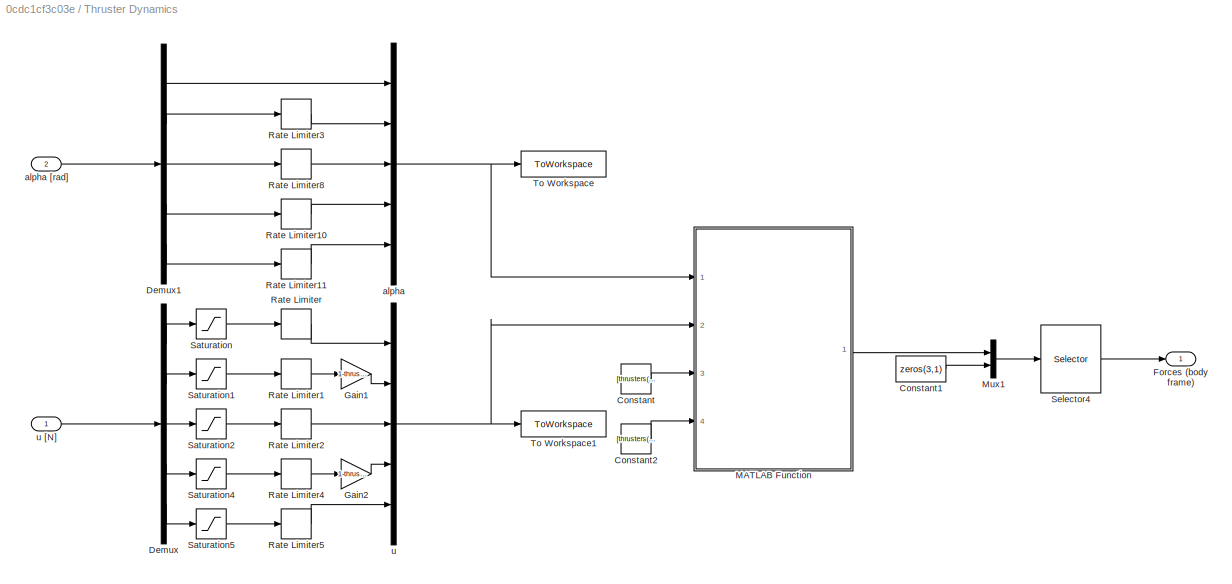
BLOCK [SubSystem] Thruster Dynamics
  Ports = [2, 1]
  RequestExecContextInheritance = off
BLOCK [Constant] Thruster Dynamics/Constant
  Value = [thrusters(1).xposition, thrusters(2).xposition, thrusters(3).xposition, thrusters(4).xposition, thrusters(5).xposition]
BLOCK [Constant] Thruster Dynamics/Constant1
  Value = zeros(3,1)
BLOCK [Constant] Thruster Dynamics/Constant2
  Value = [thrusters(1).yposition, thrusters(2).yposition, thrusters(3).yposition, thrusters(4).yposition, thrusters(5).yposition]
BLOCK [Demux] Thruster Dynamics/Demux
  DisplayOption = bar
  Outputs = 5
  Ports = [1, 5]
BLOCK [Demux] Thruster Dynamics/Demux1
  DisplayOption = bar
  Outputs = 5
  Ports = [1, 5]
BLOCK [Outport] Thruster Dynamics/Forces (body frame) 
  IconDisplay = Port number
  VectorParamsAs1DForOutWhenUnconnected = off
BLOCK [Gain] Thruster Dynamics/Gain1
  Gain = 1-thrusterfault
  OutDataTypeStr = Inherit: Inherit via internal rule
  ParamDataTypeStr = Inherit: Inherit via internal rule
  SaturateOnIntegerOverflow = off
BLOCK [Gain] Thruster Dynamics/Gain2
  Gain = 1-thrusterfault
  OutDataTypeStr = Inherit: Inherit via internal rule
  ParamDataTypeStr = Inherit: Inherit via internal rule
  SaturateOnIntegerOverflow = off
BLOCK [SubSystem] Thruster Dynamics/MATLAB Function
  ErrorFcn = Stateflow.Translate.translate
  PermitHierarchicalResolution = ExplicitOnly
  Ports = [4, 1]
  RequestExecContextInheritance = off
  SFBlockType = MATLAB Function
  TreatAsAtomicUnit = on
BLOCK [Demux] Thruster Dynamics/MATLAB Function/ Demux 
  DisplayOption = bar
  Outputs = 1
  Ports = [1, 1]
BLOCK [S-Function] Thruster Dynamics/MATLAB Function/ SFunction 
  EnableBusSupport = on
  FunctionName = sf_sfun
  PortCounts = [4 2]
  Ports = [4, 2]
  SFcnIsStateOwnerBlock = off
  SFunctionDeploymentMode = off
  Tag = Stateflow S-Function 4
BLOCK [Terminator] Thruster Dynamics/MATLAB Function/ Terminator 
BLOCK [Inport] Thruster Dynamics/MATLAB Function/PosX
  IconDisplay = Port number
  Port = 3
BLOCK [Inport] Thruster Dynamics/MATLAB Function/PosY
  IconDisplay = Port number
  Port = 4
BLOCK [Outport] Thruster Dynamics/MATLAB Function/actual_tau
  IconDisplay = Port number
  VectorParamsAs1DForOutWhenUnconnected = off
BLOCK [Inport] Thruster Dynamics/MATLAB Function/alpha_actual
  IconDisplay = Port number
BLOCK [Inport] Thruster Dynamics/MATLAB Function/thrust_actual
  IconDisplay = Port number
  Port = 2
BLOCK [Mux] Thruster Dynamics/Mux1
  DisplayOption = bar
  Inputs = 2
  Ports = [2, 1]
BLOCK [RateLimiter] Thruster Dynamics/Rate Limiter
  FallingSlewLimit = -thrusters(1).rate
  RisingSlewLimit = thrusters(1).rate
  SampleTimeMode = inherited
BLOCK [RateLimiter] Thruster Dynamics/Rate Limiter1
  FallingSlewLimit = -thrusters(2).rate
  RisingSlewLimit = thrusters(2).rate
  SampleTimeMode = inherited
BLOCK [RateLimiter] Thruster Dynamics/Rate Limiter10
  FallingSlewLimit = -thrusters(4).rotationspeed
  RisingSlewLimit = thrusters(4).rotationspeed
  SampleTimeMode = inherited
BLOCK [RateLimiter] Thruster Dynamics/Rate Limiter11
  FallingSlewLimit = -thrusters(5).rotationspeed
  RisingSlewLimit = thrusters(5).rotationspeed
  SampleTimeMode = inherited
BLOCK [RateLimiter] Thruster Dynamics/Rate Limiter2
  FallingSlewLimit = -thrusters(3).rate
  RisingSlewLimit = thrusters(3).rate
  SampleTimeMode = inherited
BLOCK [RateLimiter] Thruster Dynamics/Rate Limiter3
  FallingSlewLimit = -thrusters(2).rotationspeed
  RisingSlewLimit = thrusters(2).rotationspeed
  SampleTimeMode = inherited
BLOCK [RateLimiter] Thruster Dynamics/Rate Limiter4
  FallingSlewLimit = -thrusters(4).rate
  RisingSlewLimit = thrusters(4).rate
  SampleTimeMode = inherited
BLOCK [RateLimiter] Thruster Dynamics/Rate Limiter5
  FallingSlewLimit = -thrusters(5).rate
  RisingSlewLimit = thrusters(5).rate
  SampleTimeMode = inherited
BLOCK [RateLimiter] Thruster Dynamics/Rate Limiter8
  FallingSlewLimit = -thrusters(3).rotationspeed
  RisingSlewLimit = thrusters(3).rotationspeed
  SampleTimeMode = inherited
BLOCK [Saturate] Thruster Dynamics/Saturation
  InputPortMap = u0
  LowerLimit = -thrusters(1).thrust
  Ports = [1, 1]
  UpperLimit = thrusters(1).thrust
BLOCK [Saturate] Thruster Dynamics/Saturation1
  InputPortMap = u0
  LowerLimit = -thrusters(2).thrust
  Ports = [1, 1]
  UpperLimit = thrusters(2).thrust
BLOCK [Saturate] Thruster Dynamics/Saturation2
  InputPortMap = u0
  LowerLimit = -thrusters(3).thrust
  Ports = [1, 1]
  UpperLimit = thrusters(3).thrust
BLOCK [Saturate] Thruster Dynamics/Saturation4
  InputPortMap = u0
  LowerLimit = -thrusters(4).thrust
  Ports = [1, 1]
  UpperLimit = thrusters(4).thrust
BLOCK [Saturate] Thruster Dynamics/Saturation5
  InputPortMap = u0
  LowerLimit = -thrusters(5).thrust
  Ports = [1, 1]
  UpperLimit = thrusters(5).thrust
BLOCK [Selector] Thruster Dynamics/Selector4
  IndexOptions = Index vector (dialog)
  Indices = [1 2 4 5 6 3]
  InputPortWidth = 6
  OutputSizes = 1
  Ports = [1, 1]
BLOCK [ToWorkspace] Thruster Dynamics/To Workspace
  FixptAsFi = on
  MaxDataPoints = inf
  Ports = [1]
  SampleTime = -1
  VariableName = thrust_alpha_out
BLOCK [ToWorkspace] Thruster Dynamics/To Workspace1
  FixptAsFi = on
  MaxDataPoints = inf
  Ports = [1]
  SampleTime = -1
  VariableName = thrust_u_out
BLOCK [Mux] Thruster Dynamics/alpha
  DisplayOption = bar
  Inputs = 5
  Ports = [5, 1]
BLOCK [Inport] Thruster Dynamics/alpha [rad]
  IconDisplay = Port number
  Port = 2
BLOCK [Mux] Thruster Dynamics/u
  DisplayOption = bar
  Inputs = 5
  Ports = [5, 1]
BLOCK [Inport] Thruster Dynamics/u [N]
  IconDisplay = Port number
BLOCK [ToWorkspace] To Workspace
  FixptAsFi = on
  MaxDataPoints = inf
  Ports = [1]
  SampleTime = -1
  VariableName = eta_out
BLOCK [ToWorkspace] To Workspace1
  FixptAsFi = on
  MaxDataPoints = inf
  Ports = [1]
  SampleTime = -1
  VariableName = nu_out
BLOCK [SubSystem] Wave
  Ports = [2, 1]
  RequestExecContextInheritance = off
BLOCK [Gain] Wave/Gain
  Gain = waveforces
  OutDataTypeStr = Inherit: Inherit via internal rule
  ParamDataTypeStr = Inherit: Inherit via internal rule
  SaturateOnIntegerOverflow = off
BLOCK [Sum] Wave/Sum
  IconShape = round
  InputSameDT = off
  OutDataTypeStr = Inherit: Inherit via internal rule
  Ports = [2, 1]
  SaturateOnIntegerOverflow = off
BLOCK [ToWorkspace] Wave/To Workspace
  FixptAsFi = on
  MaxDataPoints = inf
  Ports = [1]
  SampleTime = -1
  VariableName = wave_force
BLOCK [Outport] Wave/Wave
  IconDisplay = Port number
  VectorParamsAs1DForOutWhenUnconnected = off
BLOCK [Reference] Wave/Wave loads (U=0)  REF=marine_hydro/Hydro Library/Wave loads (U=0)
  Ports = [2, 2]
  SourceBlock = marine_hydro/Hydro Library/Wave loads (U=0)
  SourceProductName = MSS Hydro
  SourceType = SubSystem
BLOCK [Inport] Wave/eta
  IconDisplay = Port number
BLOCK [Inport] Wave/waves
  IconDisplay = Port number
  Port = 2
BLOCK [Reference] Waves  REF=marine_gnc/Environment/Waves/Waves  (lib defined in mdl_10d96c221ba8, mdl_45f1105420c6)
  Ports = [0, 2]
  SourceBlock = marine_gnc/Environment/Waves/Waves
  SourceProductName = MSS GNC
  SourceType = Waves
BLOCK [SubSystem] Wind
  Ports = [1, 1]
  RequestExecContextInheritance = off
BLOCK [SubSystem] Wind/Convert angle to index in wind_coeff
  ErrorFcn = Stateflow.Translate.translate
  PermitHierarchicalResolution = ExplicitOnly
  Ports = [1, 1]
  RequestExecContextInheritance = off
  SFBlockType = MATLAB Function
  TreatAsAtomicUnit = on
BLOCK [Demux] Wind/Convert angle to index in wind_coeff/ Demux 
  DisplayOption = bar
  Outputs = 1
  Ports = [1, 1]
BLOCK [S-Function] Wind/Convert angle to index in wind_coeff/ SFunction 
  EnableBusSupport = on
  FunctionName = sf_sfun
  PortCounts = [1 2]
  Ports = [1, 2]
  SFcnIsStateOwnerBlock = off
  SFunctionDeploymentMode = off
  Tag = Stateflow S-Function 1
BLOCK [Terminator] Wind/Convert angle to index in wind_coeff/ Terminator 
BLOCK [Inport] Wind/Convert angle to index in wind_coeff/ang
  IconDisplay = Port number
BLOCK [Outport] Wind/Convert angle to index in wind_coeff/index
  IconDisplay = Port number
BLOCK [LookupNDDirect] Wind/Direct Lookup Table (n-D)
  InputsSelectThisObjectFromTable = Vector
  Ports = [1, 1]
  Table = wind_coeff_matrix'
BLOCK [Product] Wind/Product
  InputSameDT = off
  OutDataTypeStr = Inherit: Inherit via internal rule
  Ports = [2, 1]
  RndMeth = Floor
  SaturateOnIntegerOverflow = off
BLOCK [Selector] Wind/Selector
  IndexOptions = Index vector (dialog)
  Indices = [6]
  InputPortWidth = 6
  OutputSizes = 1
  Ports = [1, 1]
BLOCK [Math] Wind/Square
  Operator = magnitude^2
  Ports = [1, 1]
  SignedPower = off
BLOCK [Sum] Wind/Sum
  IconShape = round
  InputSameDT = off
  Inputs = |+-
  OutDataTypeStr = Inherit: Inherit via internal rule
  Ports = [2, 1]
  SaturateOnIntegerOverflow = off
BLOCK [Outport] Wind/Wind
  IconDisplay = Port number
  VectorParamsAs1DForOutWhenUnconnected = off
BLOCK [SubSystem] Wind/Wind mean + Gust + Slowly Varying
  Ports = [0, 2]
  RequestExecContextInheritance = off
BLOCK [Constant] Wind/Wind mean + Gust + Slowly Varying/Gust
  Value = Par_Wind_gust
BLOCK [Constant] Wind/Wind mean + Gust + Slowly Varying/Mean angle
  Value = Par_Wind_angle
BLOCK [Constant] Wind/Wind mean + Gust + Slowly Varying/Mean velocity
  Value = Par_Wind_V
BLOCK [SubSystem] Wind/Wind mean + Gust + Slowly Varying/Slowly-varying wind
  Ports = [0, 2, 1]
  RequestExecContextInheritance = off
BLOCK [Reference] Wind/Wind mean + Gust + Slowly Varying/Slowly-varying wind/Band-Limited White Noise  REF=simulink/Sources/Band-Limited
White Noise
  Ports = [0, 1]
  SourceBlock = simulink/Sources/Band-Limited\nWhite Noise
  SourceProductBaseCode = SL
  SourceProductName = Simulink
  SourceType = Band-Limited White Noise.
BLOCK [Reference] Wind/Wind mean + Gust + Slowly Varying/Slowly-varying wind/Band-Limited White Noise   REF=simulink/Sources/Band-Limited
White Noise
  Ports = [0, 1]
  SourceBlock = simulink/Sources/Band-Limited\nWhite Noise
  SourceProductBaseCode = SL
  SourceProductName = Simulink
  SourceType = Band-Limited White Noise.
BLOCK [EnablePort] Wind/Wind mean + Gust + Slowly Varying/Slowly-varying wind/Enable
  Ports = []
BLOCK [Gain] Wind/Wind mean + Gust + Slowly Varying/Slowly-varying wind/Gain
  Gain = 1/Par_Wind_speed_T
BLOCK [Gain] Wind/Wind mean + Gust + Slowly Varying/Slowly-varying wind/Gain 
  Gain = 1/Par_Wind_angle_T
BLOCK [Integrator] Wind/Wind mean + Gust + Slowly Varying/Slowly-varying wind/Integrator
  LimitOutput = on
  LowerSaturationLimit = -Par_Wind_speed_rand_max
  Ports = [1, 1]
  UpperSaturationLimit = Par_Wind_speed_rand_max
BLOCK [Integrator] Wind/Wind mean + Gust + Slowly Varying/Slowly-varying wind/Integrator 
  LimitOutput = on
  LowerSaturationLimit = -Par_Wind_angle_rand_max
  Ports = [1, 1]
  UpperSaturationLimit = Par_Wind_angle_rand_max
BLOCK [Sum] Wind/Wind mean + Gust + Slowly Varying/Slowly-varying wind/Sum
  IconShape = round
  Inputs = |+-
  Ports = [2, 1]
BLOCK [Sum] Wind/Wind mean + Gust + Slowly Varying/Slowly-varying wind/Sum       
  IconShape = round
  Inputs = |+-
  Ports = [2, 1]
BLOCK [Outport] Wind/Wind mean + Gust + Slowly Varying/Slowly-varying wind/angle
  IconDisplay = Port number
  InitialOutput = 0
BLOCK [Outport] Wind/Wind mean + Gust + Slowly Varying/Slowly-varying wind/speed
  IconDisplay = Port number
  InitialOutput = 0
  Port = 2
BLOCK [Constant] Wind/Wind mean + Gust + Slowly Varying/Slowlyvar
  Value = Par_Wind_slowlyvar
BLOCK [Sum] Wind/Wind mean + Gust + Slowly Varying/Sum
  IconShape = round
  InputSameDT = off
  Inputs = ++|
  OutDataTypeStr = Inherit: Inherit via internal rule
  Ports = [2, 1]
BLOCK [Sum] Wind/Wind mean + Gust + Slowly Varying/Sum1
  IconShape = round
  InputSameDT = off
  Inputs = +++
  OutDataTypeStr = Inherit: Inherit via internal rule
  Ports = [3, 1]
BLOCK [SubSystem] Wind/Wind mean + Gust + Slowly Varying/Wind gust
  Ports = [1, 1, 1]
  RequestExecContextInheritance = off
BLOCK [Clock] Wind/Wind mean + Gust + Slowly Varying/Wind gust/Clock
BLOCK [DotProduct] Wind/Wind mean + Gust + Slowly Varying/Wind gust/Dot Product
  OutDataTypeStr = Inherit: Inherit via internal rule
BLOCK [EnablePort] Wind/Wind mean + Gust + Slowly Varying/Wind gust/Enable
  Ports = []
BLOCK [Constant] Wind/Wind mean + Gust + Slowly Varying/Wind gust/Frequencies
  Value = Par_Wind_minfreq:(Par_Wind_maxfreq - Par_Wind_minfreq)/(Par_Wind_nfreq-1):Par_Wind_maxfreq
BLOCK [Gain] Wind/Wind mean + Gust + Slowly Varying/Wind gust/Gain
  Gain = 2
BLOCK [Gain] Wind/Wind mean + Gust + Slowly Varying/Wind gust/Gain1
  Gain = 2*pi
BLOCK [Outport] Wind/Wind mean + Gust + Slowly Varying/Wind gust/Gust
  IconDisplay = Port number
  InitialOutput = 0
BLOCK [SubSystem] Wind/Wind mean + Gust + Slowly Varying/Wind gust/Harris spectrum
  Ports = [2, 1]
  RequestExecContextInheritance = off
BLOCK [Constant] Wind/Wind mean + Gust + Slowly Varying/Wind gust/Harris spectrum/Constant
  Value = 4
BLOCK [Constant] Wind/Wind mean + Gust + Slowly Varying/Wind gust/Harris spectrum/Constant1
  Value = 5/6
BLOCK [Fcn] Wind/Wind mean + Gust + Slowly Varying/Wind gust/Harris spectrum/Fcn
  Expr = u^(8/3)
BLOCK [Fcn] Wind/Wind mean + Gust + Slowly Varying/Wind gust/Harris spectrum/Fcn1
  Expr = u^2
BLOCK [Inport] Wind/Wind mean + Gust + Slowly Varying/Wind gust/Harris spectrum/Freqs
  IconDisplay = Port number
BLOCK [Gain] Wind/Wind mean + Gust + Slowly Varying/Wind gust/Harris spectrum/Gain
  Gain = 2
BLOCK [Constant] Wind/Wind mean + Gust + Slowly Varying/Wind gust/Harris spectrum/L
  Value = Par_Wind_L
BLOCK [Math] Wind/Wind mean + Gust + Slowly Varying/Wind gust/Harris spectrum/Math Function
  Operator = magnitude^2
  Ports = [1, 1]
BLOCK [Math] Wind/Wind mean + Gust + Slowly Varying/Wind gust/Harris spectrum/Math Function1
  Operator = magnitude^2
  Ports = [1, 1]
BLOCK [Math] Wind/Wind mean + Gust + Slowly Varying/Wind gust/Harris spectrum/Math Function2
  Operator = pow
  Ports = [2, 1]
BLOCK [Product] Wind/Wind mean + Gust + Slowly Varying/Wind gust/Harris spectrum/Product
  InputSameDT = off
  Inputs = 4
  Ports = [4, 1]
  RndMeth = Floor
BLOCK [Product] Wind/Wind mean + Gust + Slowly Varying/Wind gust/Harris spectrum/Product1
  InputSameDT = off
  Ports = [2, 1]
  RndMeth = Floor
BLOCK [Product] Wind/Wind mean + Gust + Slowly Varying/Wind gust/Harris spectrum/Product2
  InputSameDT = off
  Inputs = /*
  Ports = [2, 1]
  RndMeth = Floor
BLOCK [Outport] Wind/Wind mean + Gust + Slowly Varying/Wind gust/Harris spectrum/S
  IconDisplay = Port number
BLOCK [Sum] Wind/Wind mean + Gust + Slowly Varying/Wind gust/Harris spectrum/Sum
  IconShape = round
  InputSameDT = off
  Inputs = ++|
  OutDataTypeStr = Inherit: Inherit via internal rule
  Ports = [2, 1]
BLOCK [Constant] Wind/Wind mean + Gust + Slowly Varying/Wind gust/Harris spectrum/kappa_H
  Value = Par_Wind_kappa_H
BLOCK [Inport] Wind/Wind mean + Gust + Slowly Varying/Wind gust/Harris spectrum/u10
  IconDisplay = Port number
  Port = 2
BLOCK [Math] Wind/Wind mean + Gust + Slowly Varying/Wind gust/Math Function1
  Operator = sqrt
  Ports = [1, 1]
BLOCK [MultiPortSwitch] Wind/Wind mean + Gust + Slowly Varying/Wind gust/Multiport Switch
  InputSameDT = off
  Inputs = 2
  Ports = [3, 1]
  RndMeth = Nearest
BLOCK [SubSystem] Wind/Wind mean + Gust + Slowly Varying/Wind gust/NORSOK spectrum
  Ports = [2, 1]
  RequestExecContextInheritance = off
BLOCK [Constant] Wind/Wind mean + Gust + Slowly Varying/Wind gust/NORSOK spectrum/5//(3n) (NORSOK parameter)
  Value = 5/(3*0.468)
BLOCK [Constant] Wind/Wind mean + Gust + Slowly Varying/Wind gust/NORSOK spectrum/Constant2
BLOCK [Fcn] Wind/Wind mean + Gust + Slowly Varying/Wind gust/NORSOK spectrum/Fcn2
  Expr = u^(2/3)
BLOCK [Fcn] Wind/Wind mean + Gust + Slowly Varying/Wind gust/NORSOK spectrum/Fcn3
  Expr = (u+1E-4)^(-3/4)
BLOCK [Fcn] Wind/Wind mean + Gust + Slowly Varying/Wind gust/NORSOK spectrum/Fcn4
  Expr = u^0.45
BLOCK [Inport] Wind/Wind mean + Gust + Slowly Varying/Wind gust/NORSOK spectrum/Freqs
  IconDisplay = Port number
BLOCK [Gain] Wind/Wind mean + Gust + Slowly Varying/Wind gust/NORSOK spectrum/Gain1
  Gain = 172
BLOCK [Gain] Wind/Wind mean + Gust + Slowly Varying/Wind gust/NORSOK spectrum/Gain2
  Gain = 1/10
BLOCK [Gain] Wind/Wind mean + Gust + Slowly Varying/Wind gust/NORSOK spectrum/Gain3
  Gain = 1/10
BLOCK [Gain] Wind/Wind mean + Gust + Slowly Varying/Wind gust/NORSOK spectrum/Gain4
  Gain = 320
BLOCK [Math] Wind/Wind mean + Gust + Slowly Varying/Wind gust/NORSOK spectrum/Math Function3
  Operator = magnitude^2
  Ports = [1, 1]
BLOCK [Math] Wind/Wind mean + Gust + Slowly Varying/Wind gust/NORSOK spectrum/Math Function4
  Operator = pow
  Ports = [2, 1]
BLOCK [Math] Wind/Wind mean + Gust + Slowly Varying/Wind gust/NORSOK spectrum/Math Function5
  Operator = pow
  Ports = [2, 1]
BLOCK [Product] Wind/Wind mean + Gust + Slowly Varying/Wind gust/NORSOK spectrum/Product3
  InputSameDT = off
  Inputs = 3
  Ports = [3, 1]
  RndMeth = Floor
BLOCK [Product] Wind/Wind mean + Gust + Slowly Varying/Wind gust/NORSOK spectrum/Product4
  InputSameDT = off
  Inputs = /**
  Ports = [3, 1]
  RndMeth = Floor
BLOCK [Outport] Wind/Wind mean + Gust + Slowly Varying/Wind gust/NORSOK spectrum/S
  IconDisplay = Port number
BLOCK [Sum] Wind/Wind mean + Gust + Slowly Varying/Wind gust/NORSOK spectrum/Sum1
  IconShape = round
  InputSameDT = off
  Inputs = ++|
  OutDataTypeStr = Inherit: Inherit via internal rule
  Ports = [2, 1]
BLOCK [Constant] Wind/Wind mean + Gust + Slowly Varying/Wind gust/NORSOK spectrum/n (NORSOK parameter)
  Value = 0.468
BLOCK [Inport] Wind/Wind mean + Gust + Slowly Varying/Wind gust/NORSOK spectrum/u10
  IconDisplay = Port number
  Port = 2
BLOCK [Constant] Wind/Wind mean + Gust + Slowly Varying/Wind gust/NORSOK spectrum/z (height)
  Value = Par_Wind_z
BLOCK [SubSystem] Wind/Wind mean + Gust + Slowly Varying/Wind gust/Phase generator
  Ports = [0, 1, 0, 1]
  RequestExecContextInheritance = off
BLOCK [Outport] Wind/Wind mean + Gust + Slowly Varying/Wind gust/Phase generator/Phase
  IconDisplay = Port number
BLOCK [RandomNumber] Wind/Wind mean + Gust + Slowly Varying/Wind gust/Phase generator/Random Number
  Seed = Par_Wind_phase_seed*[1:Par_Wind_nfreq]
  Variance = 3
BLOCK [TriggerPort] Wind/Wind mean + Gust + Slowly Varying/Wind gust/Phase generator/Trigger
  Ports = []
  StatesWhenEnabling = held
  VariantControl = (inherit)
BLOCK [Reference] Wind/Wind mean + Gust + Slowly Varying/Wind gust/Phase generator/[-inf inf] to [-pi pi]  REF=marine_gnc/Utilities/Math Operations/[-inf inf] to [-pi pi]  (lib defined in mdl_10d96c221ba8, mdl_45f1105420c6)
  Ports = [1, 1]
  SourceBlock = marine_gnc/Utilities/Math Operations/[-inf inf] to [-pi pi]
  SourceProductName = MSS GNC
  SourceType = [-inf inf] to [-pi pi]
BLOCK [Product] Wind/Wind mean + Gust + Slowly Varying/Wind gust/Product1
  InputSameDT = off
  Ports = [2, 1]
  RndMeth = Floor
BLOCK [Product] Wind/Wind mean + Gust + Slowly Varying/Wind gust/Product2
  InputSameDT = off
  Ports = [2, 1]
  RndMeth = Floor
BLOCK [Saturate] Wind/Wind mean + Gust + Slowly Varying/Wind gust/Saturation
  InputPortMap = u0
  LowerLimit = 1
  Ports = [1, 1]
  UpperLimit = 2
BLOCK [Constant] Wind/Wind mean + Gust + Slowly Varying/Wind gust/Spectrum type
  Value = Par_Wind_spectrum_type
BLOCK [Sum] Wind/Wind mean + Gust + Slowly Varying/Wind gust/Sum
  IconShape = round
  InputSameDT = off
  OutDataTypeStr = Inherit: Inherit via internal rule
  Ports = [2, 1]
BLOCK [Trigonometry] Wind/Wind mean + Gust + Slowly Varying/Wind gust/Trigonometric Function
  Ports = [1, 1]
BLOCK [Constant] Wind/Wind mean + Gust + Slowly Varying/Wind gust/dfreq
  Value = (Par_Wind_maxfreq - Par_Wind_minfreq)/(Par_Wind_nfreq -1)
BLOCK [Inport] Wind/Wind mean + Gust + Slowly Varying/Wind gust/u10
  IconDisplay = Port number
BLOCK [Outport] Wind/Wind mean + Gust + Slowly Varying/angle
  IconDisplay = Port number
BLOCK [Outport] Wind/Wind mean + Gust + Slowly Varying/speed
  IconDisplay = Port number
  Port = 2
BLOCK [Reference] Wind/[-inf inf] to [-pi pi]1  REF=marine_gnc/Utilities/Math Operations/[-inf inf] to [-pi pi]  (lib defined in mdl_10d96c221ba8, mdl_45f1105420c6)
  Ports = [1, 1]
  SourceBlock = marine_gnc/Utilities/Math Operations/[-inf inf] to [-pi pi]
  SourceProductName = MSS GNC
  SourceType = [-inf inf] to [-pi pi]
BLOCK [Inport] Wind/eta 
  IconDisplay = Port number
LINE Current (North - East)/Angle variation /Band-Limited White Noise:1 -> Current (North - East)/Angle variation /Sum:1
LINE Current (North - East)/Angle variation /Gain:1 -> Current (North - East)/Angle variation /Sum:2
NET Current (North - East)/Angle variation /Integrator:1 -> Current (North - East)/Angle variation /Gain:1, Current (North - East)/Angle variation /Saturation:1
LINE Current (North - East)/Angle variation /Mean Dir:1 -> Current (North - East)/Angle variation /Sum1:1
LINE Current (North - East)/Angle variation /Saturation:1 -> Current (North - East)/Angle variation /Sum1:2
LINE Current (North - East)/Angle variation /Sum1:1 -> Current (North - East)/Angle variation /Current Dir:1
LINE Current (North - East)/Angle variation /Sum:1 -> Current (North - East)/Angle variation /Integrator:1
LINE Current (North - East)/Angle variation :1 -> Current (North - East)/North-East current:1
LINE Current (North - East)/Constant2:1 -> Current (North - East)/Angle variation :1
LINE Current (North - East)/Constant:1 -> Current (North - East)/Velocity variation:1
LINE Current (North - East)/North-East current:1 -> Current (North - East)/RFC :2
NET Current (North - East)/RFC /Constant:1 -> Current (North - East)/RFC /Mux1:3, Current (North - East)/RFC /Mux1:4, Current (North - East)/RFC /Mux1:5
LINE Current (North - East)/RFC /Current (NED) :1 -> Current (North - East)/RFC /Demux:1
LINE Current (North - East)/RFC /Demux2:1 -> Current (North - East)/RFC /Mux1:1
LINE Current (North - East)/RFC /Demux2:2 -> Current (North - East)/RFC /Mux1:2
LINE Current (North - East)/RFC /Demux2:3 -> Current (North - East)/RFC /Mux1:6
LINE Current (North - East)/RFC /Demux:1 -> Current (North - East)/RFC /Mux:1
LINE Current (North - East)/RFC /Demux:2 -> Current (North - East)/RFC /Mux:2
LINE Current (North - East)/RFC /Demux:3 -> Current (North - East)/RFC /Mux:3
LINE Current (North - East)/RFC /Demux:4 -> Current (North - East)/RFC /Terminator:1
LINE Current (North - East)/RFC /Demux:5 -> Current (North - East)/RFC /Terminator1:1
LINE Current (North - East)/RFC /Demux:6 -> Current (North - East)/RFC /Terminator2:1
LINE Current (North - East)/RFC /Mux1:1 -> Current (North - East)/RFC /Current (Body) :1
LINE Current (North - East)/RFC /Mux:1 -> Current (North - East)/RFC /Transposed rotation matrix in yaw:2
LINE Current (North - East)/RFC /Selector:1 -> Current (North - East)/RFC /Transposed rotation matrix in yaw:1
LINE Current (North - East)/RFC /Transposed rotation matrix in yaw:1 -> Current (North - East)/RFC /Demux2:1
LINE Current (North - East)/RFC /eta:1 -> Current (North - East)/RFC /Selector:1
LINE Current (North - East)/RFC :1 -> Current (North - East)/Current:1
LINE Current (North - East)/Velocity variation/Band-Limited White Noise:1 -> Current (North - East)/Velocity variation/Sum:1
LINE Current (North - East)/Velocity variation/Gain:1 -> Current (North - East)/Velocity variation/Sum:2
NET Current (North - East)/Velocity variation/Integrator:1 -> Current (North - East)/Velocity variation/Gain:1, Current (North - East)/Velocity variation/Saturation:1
LINE Current (North - East)/Velocity variation/Mean Vel:1 -> Current (North - East)/Velocity variation/Sum1:1
LINE Current (North - East)/Velocity variation/Saturation:1 -> Current (North - East)/Velocity variation/Sum1:2
LINE Current (North - East)/Velocity variation/Sum1:1 -> Current (North - East)/Velocity variation/Current Vel:1
LINE Current (North - East)/Velocity variation/Sum:1 -> Current (North - East)/Velocity variation/Integrator:1
LINE Current (North - East)/Velocity variation:1 -> Current (North - East)/North-East current:2
LINE Current (North - East)/eta:1 -> Current (North - East)/RFC :1
LINE Current (North - East):1 -> Supply Ship:3
NET DP Controller/Constant:1 -> DP Controller/Mux:3, DP Controller/Mux:4, DP Controller/Mux:5
LINE DP Controller/Demux1:1 -> DP Controller/Mux:1
LINE DP Controller/Demux1:2 -> DP Controller/Mux:2
LINE DP Controller/Demux1:3 -> DP Controller/Mux:6
LINE DP Controller/Demux2:1 -> DP Controller/Terminator:1
LINE DP Controller/Demux2:2 -> DP Controller/Terminator1:1
LINE DP Controller/Demux2:3 -> DP Controller/[-inf inf] to [-pi pi]2:1
LINE DP Controller/Demux:1 -> DP Controller/Mux1:1
LINE DP Controller/Demux:2 -> DP Controller/Mux1:2
LINE DP Controller/Demux:3 -> DP Controller/[-inf inf] to [-pi pi]1:1
LINE DP Controller/Gain1:1 -> DP Controller/Sum1:2
LINE DP Controller/Gain2:1 -> DP Controller/Sum1:1
LINE DP Controller/Gain:1 -> DP Controller/Sum:2
LINE DP Controller/Integrator:1 -> DP Controller/Gain1:1
LINE DP Controller/Mux1:1 -> DP Controller/Transposed rotation matrix in yaw:2
NET DP Controller/Mux:1 -> DP Controller/To Workspace:1, DP Controller/tau (body frame):1
LINE DP Controller/Ref Vel :1 -> DP Controller/Sum3:1
LINE DP Controller/Sum1:1 -> DP Controller/Sum:1
LINE DP Controller/Sum2:1 -> DP Controller/Demux:1
LINE DP Controller/Sum3:1 -> DP Controller/Gain:1
LINE DP Controller/Sum:1 -> DP Controller/Demux1:1
NET DP Controller/Transposed rotation matrix in yaw:1 -> DP Controller/Gain2:1, DP Controller/Integrator:1
LINE DP Controller/[-inf inf] to [-pi pi]1:1 -> DP Controller/Mux1:3
LINE DP Controller/[-inf inf] to [-pi pi]2:1 -> DP Controller/Transposed rotation matrix in yaw:1
LINE DP Controller/eta set point:1 -> DP Controller/Sum2:2
NET DP Controller/eta:1 -> DP Controller/Demux2:1, DP Controller/Sum2:1
LINE DP Controller/nu:1 -> DP Controller/Sum3:2
LINE DP Controller/setpoint_change:1 -> DP Controller/Integrator:2
NET DP Controller:1 -> Observer:3, Thrust Allocation:1
LINE Observer/Constant1:1 -> Observer/Gain2:1
LINE Observer/Constant:1 -> Observer/Gain1:1
LINE Observer/Gain1:1 -> Observer/Kalman Filter :enable
LINE Observer/Gain2:1 -> Observer/Non-linear Passive observer:enable
LINE Observer/Gain6:1 -> Observer/Sum2:2
LINE Observer/Gain7:1 -> Observer/Sum3:1
LINE Observer/Kalman Filter /Extended Kalman Filter/Constant1:1 -> Observer/Kalman Filter /Extended Kalman Filter/Discrete Kalman Filter:7
LINE Observer/Kalman Filter /Extended Kalman Filter/Constant2:1 -> Observer/Kalman Filter /Extended Kalman Filter/Discrete Kalman Filter:8
LINE Observer/Kalman Filter /Extended Kalman Filter/Constant3:1 -> Observer/Kalman Filter /Extended Kalman Filter/EKF - Linearized parameters:2
LINE Observer/Kalman Filter /Extended Kalman Filter/Constant4:1 -> Observer/Kalman Filter /Extended Kalman Filter/EKF - Linearized parameters:3
LINE Observer/Kalman Filter /Extended Kalman Filter/Constant5:1 -> Observer/Kalman Filter /Extended Kalman Filter/EKF - Linearized parameters:4
LINE Observer/Kalman Filter /Extended Kalman Filter/Constant:1 -> Observer/Kalman Filter /Extended Kalman Filter/Discrete Kalman Filter:6
LINE Observer/Kalman Filter /Extended Kalman Filter/Discrete Kalman Filter:1 -> Observer/Kalman Filter /Extended Kalman Filter/Memory1:1
NET Observer/Kalman Filter /Extended Kalman Filter/Discrete Kalman Filter:2 -> Observer/Kalman Filter /Extended Kalman Filter/Memory:1, Observer/Kalman Filter /Extended Kalman Filter/Selector1:1, Observer/Kalman Filter /Extended Kalman Filter/Selector:1
LINE Observer/Kalman Filter /Extended Kalman Filter/EKF - Linearized parameters:1 -> Observer/Kalman Filter /Extended Kalman Filter/Discrete Kalman Filter:3
LINE Observer/Kalman Filter /Extended Kalman Filter/EKF - Linearized parameters:2 -> Observer/Kalman Filter /Extended Kalman Filter/Discrete Kalman Filter:4
LINE Observer/Kalman Filter /Extended Kalman Filter/EKF - Linearized parameters:3 -> Observer/Kalman Filter /Extended Kalman Filter/Discrete Kalman Filter:5
LINE Observer/Kalman Filter /Extended Kalman Filter/Memory1:1 -> Observer/Kalman Filter /Extended Kalman Filter/Discrete Kalman Filter:1
NET Observer/Kalman Filter /Extended Kalman Filter/Memory:1 -> Observer/Kalman Filter /Extended Kalman Filter/Discrete Kalman Filter:2, Observer/Kalman Filter /Extended Kalman Filter/EKF - Linearized parameters:1
LINE Observer/Kalman Filter /Extended Kalman Filter/Selector1:1 -> Observer/Kalman Filter /Extended Kalman Filter/eta_hat:1
LINE Observer/Kalman Filter /Extended Kalman Filter/Selector:1 -> Observer/Kalman Filter /Extended Kalman Filter/nu_hat:1
LINE Observer/Kalman Filter /Extended Kalman Filter/u:1 -> Observer/Kalman Filter /Extended Kalman Filter/Discrete Kalman Filter:9
LINE Observer/Kalman Filter /Extended Kalman Filter/y:1 -> Observer/Kalman Filter /Extended Kalman Filter/Discrete Kalman Filter:10
LINE Observer/Kalman Filter /Extended Kalman Filter:1 -> Observer/Kalman Filter /nu_hat:1
LINE Observer/Kalman Filter /Extended Kalman Filter:2 -> Observer/Kalman Filter /eta_hat:1
LINE Observer/Kalman Filter /tau_est:1 -> Observer/Kalman Filter /Extended Kalman Filter:2
LINE Observer/Kalman Filter /y:1 -> Observer/Kalman Filter /Extended Kalman Filter:1
LINE Observer/Kalman Filter :1 -> Observer/Sum:1
LINE Observer/Kalman Filter :2 -> Observer/Sum1:1
LINE Observer/Memory:1 -> Observer/Selector:1
LINE Observer/Non-linear Passive observer/Subsystem/ /Add:1 -> Observer/Non-linear Passive observer/Subsystem/ /Integrator:1
LINE Observer/Non-linear Passive observer/Subsystem/ /Integrator:1 -> Observer/Non-linear Passive observer/Subsystem/ /eta_hat:1
LINE Observer/Non-linear Passive observer/Subsystem/ /input1:1 -> Observer/Non-linear Passive observer/Subsystem/ /Add:1
LINE Observer/Non-linear Passive observer/Subsystem/ /input2:1 -> Observer/Non-linear Passive observer/Subsystem/ /Add:2
LINE Observer/Non-linear Passive observer/Subsystem/ :1 -> Observer/Non-linear Passive observer/Subsystem/Add:2
NET Observer/Non-linear Passive observer/Subsystem/Add1:1 -> Observer/Non-linear Passive observer/Subsystem/K1:1, Observer/Non-linear Passive observer/Subsystem/K2:1, Observer/Non-linear Passive observer/Subsystem/K3:1, Observer/Non-linear Passive observer/Subsystem/K4:1
NET Observer/Non-linear Passive observer/Subsystem/Add:1 -> Observer/Non-linear Passive observer/Subsystem/Add1:1, Observer/Non-linear Passive observer/Subsystem/eta_hat_total:1
NET Observer/Non-linear Passive observer/Subsystem/Bias estimation/Integrator:1 -> Observer/Non-linear Passive observer/Subsystem/Bias estimation/Rot^T:2, Observer/Non-linear Passive observer/Subsystem/Bias estimation/T^-1:1
LINE Observer/Non-linear Passive observer/Subsystem/Bias estimation/Rot^T/Euler angles to rotation matrix:1 -> Observer/Non-linear Passive observer/Subsystem/Bias estimation/Rot^T/Transpose:1
LINE Observer/Non-linear Passive observer/Subsystem/Bias estimation/Rot^T/In2:1 -> Observer/Non-linear Passive observer/Subsystem/Bias estimation/Rot^T/Matrix Multiply:2
LINE Observer/Non-linear Passive observer/Subsystem/Bias estimation/Rot^T/Matrix Multiply:1 -> Observer/Non-linear Passive observer/Subsystem/Bias estimation/Rot^T/output:1
LINE Observer/Non-linear Passive observer/Subsystem/Bias estimation/Rot^T/Transpose:1 -> Observer/Non-linear Passive observer/Subsystem/Bias estimation/Rot^T/Matrix Multiply:1
LINE Observer/Non-linear Passive observer/Subsystem/Bias estimation/Rot^T/eta:1 -> Observer/Non-linear Passive observer/Subsystem/Bias estimation/Rot^T/Euler angles to rotation matrix:1
LINE Observer/Non-linear Passive observer/Subsystem/Bias estimation/Rot^T:1 -> Observer/Non-linear Passive observer/Subsystem/Bias estimation/output:1
LINE Observer/Non-linear Passive observer/Subsystem/Bias estimation/Subtract:1 -> Observer/Non-linear Passive observer/Subsystem/Bias estimation/Integrator:1
LINE Observer/Non-linear Passive observer/Subsystem/Bias estimation/T^-1:1 -> Observer/Non-linear Passive observer/Subsystem/Bias estimation/Subtract:2
LINE Observer/Non-linear Passive observer/Subsystem/Bias estimation/eta:1 -> Observer/Non-linear Passive observer/Subsystem/Bias estimation/Rot^T:1
LINE Observer/Non-linear Passive observer/Subsystem/Bias estimation/input:1 -> Observer/Non-linear Passive observer/Subsystem/Bias estimation/Subtract:1
LINE Observer/Non-linear Passive observer/Subsystem/Bias estimation:1 -> Observer/Non-linear Passive observer/Subsystem/Vessel dynamics:4
LINE Observer/Non-linear Passive observer/Subsystem/K1:1 -> Observer/Non-linear Passive observer/Subsystem/Wave estimation:1
LINE Observer/Non-linear Passive observer/Subsystem/K2:1 -> Observer/Non-linear Passive observer/Subsystem/ :1
LINE Observer/Non-linear Passive observer/Subsystem/K3:1 -> Observer/Non-linear Passive observer/Subsystem/Bias estimation:1
LINE Observer/Non-linear Passive observer/Subsystem/K4:1 -> Observer/Non-linear Passive observer/Subsystem/Vessel dynamics:1
LINE Observer/Non-linear Passive observer/Subsystem/Vessel dynamics/Add1:1 -> Observer/Non-linear Passive observer/Subsystem/Vessel dynamics/M^-1:1
LINE Observer/Non-linear Passive observer/Subsystem/Vessel dynamics/Add:1 -> Observer/Non-linear Passive observer/Subsystem/Vessel dynamics/Add1:2
LINE Observer/Non-linear Passive observer/Subsystem/Vessel dynamics/D:1 -> Observer/Non-linear Passive observer/Subsystem/Vessel dynamics/Add1:3
NET Observer/Non-linear Passive observer/Subsystem/Vessel dynamics/Integrator:1 -> Observer/Non-linear Passive observer/Subsystem/Vessel dynamics/D:1, Observer/Non-linear Passive observer/Subsystem/Vessel dynamics/Rot:2, Observer/Non-linear Passive observer/Subsystem/Vessel dynamics/nu_hat:1
LINE Observer/Non-linear Passive observer/Subsystem/Vessel dynamics/M^-1:1 -> Observer/Non-linear Passive observer/Subsystem/Vessel dynamics/Integrator:1
LINE Observer/Non-linear Passive observer/Subsystem/Vessel dynamics/Rot/Matrix Multiply:1 -> Observer/Non-linear Passive observer/Subsystem/Vessel dynamics/Rot/output:1
LINE Observer/Non-linear Passive observer/Subsystem/Vessel dynamics/Rot/eta:1 -> Observer/Non-linear Passive observer/Subsystem/Vessel dynamics/Rot/euler angles to rotation matrix:1
LINE Observer/Non-linear Passive observer/Subsystem/Vessel dynamics/Rot/euler angles to rotation matrix:1 -> Observer/Non-linear Passive observer/Subsystem/Vessel dynamics/Rot/Matrix Multiply:1
LINE Observer/Non-linear Passive observer/Subsystem/Vessel dynamics/Rot/input1:1 -> Observer/Non-linear Passive observer/Subsystem/Vessel dynamics/Rot/Matrix Multiply:2
LINE Observer/Non-linear Passive observer/Subsystem/Vessel dynamics/Rot:1 -> Observer/Non-linear Passive observer/Subsystem/Vessel dynamics/out:1
LINE Observer/Non-linear Passive observer/Subsystem/Vessel dynamics/Rot^T/Euler angles to rotation matrix:1 -> Observer/Non-linear Passive observer/Subsystem/Vessel dynamics/Rot^T/Transpose:1
LINE Observer/Non-linear Passive observer/Subsystem/Vessel dynamics/Rot^T/Matrix Multiply:1 -> Observer/Non-linear Passive observer/Subsystem/Vessel dynamics/Rot^T/output:1
LINE Observer/Non-linear Passive observer/Subsystem/Vessel dynamics/Rot^T/Transpose:1 -> Observer/Non-linear Passive observer/Subsystem/Vessel dynamics/Rot^T/Matrix Multiply:1
LINE Observer/Non-linear Passive observer/Subsystem/Vessel dynamics/Rot^T/eta:1 -> Observer/Non-linear Passive observer/Subsystem/Vessel dynamics/Rot^T/Euler angles to rotation matrix:1
LINE Observer/Non-linear Passive observer/Subsystem/Vessel dynamics/Rot^T/input1:1 -> Observer/Non-linear Passive observer/Subsystem/Vessel dynamics/Rot^T/Matrix Multiply:2
LINE Observer/Non-linear Passive observer/Subsystem/Vessel dynamics/Rot^T:1 -> Observer/Non-linear Passive observer/Subsystem/Vessel dynamics/Add:1
NET Observer/Non-linear Passive observer/Subsystem/Vessel dynamics/eta:1 -> Observer/Non-linear Passive observer/Subsystem/Vessel dynamics/Rot:1, Observer/Non-linear Passive observer/Subsystem/Vessel dynamics/Rot^T:1
LINE Observer/Non-linear Passive observer/Subsystem/Vessel dynamics/input1:1 -> Observer/Non-linear Passive observer/Subsystem/Vessel dynamics/Rot^T:2
LINE Observer/Non-linear Passive observer/Subsystem/Vessel dynamics/input3:1 -> Observer/Non-linear Passive observer/Subsystem/Vessel dynamics/Add1:1
LINE Observer/Non-linear Passive observer/Subsystem/Vessel dynamics/tau_est:1 -> Observer/Non-linear Passive observer/Subsystem/Vessel dynamics/Add:2
LINE Observer/Non-linear Passive observer/Subsystem/Vessel dynamics:1 -> Observer/Non-linear Passive observer/Subsystem/ :2
LINE Observer/Non-linear Passive observer/Subsystem/Vessel dynamics:2 -> Observer/Non-linear Passive observer/Subsystem/nu_hat:1
LINE Observer/Non-linear Passive observer/Subsystem/Wave estimation/Add:1 -> Observer/Non-linear Passive observer/Subsystem/Wave estimation/Integrator:1
LINE Observer/Non-linear Passive observer/Subsystem/Wave estimation/Aw:1 -> Observer/Non-linear Passive observer/Subsystem/Wave estimation/Add:2
LINE Observer/Non-linear Passive observer/Subsystem/Wave estimation/Cw:1 -> Observer/Non-linear Passive observer/Subsystem/Wave estimation/eta_hat_w:1
NET Observer/Non-linear Passive observer/Subsystem/Wave estimation/Integrator:1 -> Observer/Non-linear Passive observer/Subsystem/Wave estimation/Aw:1, Observer/Non-linear Passive observer/Subsystem/Wave estimation/Cw:1
LINE Observer/Non-linear Passive observer/Subsystem/Wave estimation/input:1 -> Observer/Non-linear Passive observer/Subsystem/Wave estimation/Add:1
LINE Observer/Non-linear Passive observer/Subsystem/Wave estimation:1 -> Observer/Non-linear Passive observer/Subsystem/Add:1
NET Observer/Non-linear Passive observer/Subsystem/eta:1 -> Observer/Non-linear Passive observer/Subsystem/Add1:2, Observer/Non-linear Passive observer/Subsystem/Bias estimation:2, Observer/Non-linear Passive observer/Subsystem/Vessel dynamics:2
LINE Observer/Non-linear Passive observer/Subsystem/tau_est:1 -> Observer/Non-linear Passive observer/Subsystem/Vessel dynamics:3
LINE Observer/Non-linear Passive observer/Subsystem:1 -> Observer/Non-linear Passive observer/nu_hat:1
LINE Observer/Non-linear Passive observer/Subsystem:2 -> Observer/Non-linear Passive observer/eta_hat:1
LINE Observer/Non-linear Passive observer/eta:1 -> Observer/Non-linear Passive observer/Subsystem:1
LINE Observer/Non-linear Passive observer/tau_est:1 -> Observer/Non-linear Passive observer/Subsystem:2
LINE Observer/Non-linear Passive observer:1 -> Observer/Sum:2
LINE Observer/Non-linear Passive observer:2 -> Observer/Sum1:2
NET Observer/Selector:1 -> Observer/Kalman Filter :2, Observer/Non-linear Passive observer:2
LINE Observer/Sum1:1 -> Observer/Sum2:1
NET Observer/Sum2:1 -> Observer/To Workspace1:1, Observer/eta_hat:1
NET Observer/Sum3:1 -> Observer/To Workspace:1, Observer/nu_hat:1
LINE Observer/Sum:1 -> Observer/Sum3:2
LINE Observer/tau_est:1 -> Observer/Memory:1
NET Observer/y:1 -> Observer/Gain6:1, Observer/Kalman Filter :1, Observer/Non-linear Passive observer:1
LINE Observer/y_dot:1 -> Observer/Gain7:1
NET Observer:1 -> DP Controller:1, Reference Model:2
NET Observer:2 -> DP Controller:2, Reference Model:1
LINE Reference Model/Constant1:1 -> Reference Model/Use Ref model or not (vel) :2
LINE Reference Model/Constant2:1 -> Reference Model/Use Ref model or not (vel) :3
LINE Reference Model/Constant:1 -> Reference Model/Use Ref model or not:2
LINE Reference Model/Demux1:1 -> Reference Model/Scope1:1
LINE Reference Model/Demux1:2 -> Reference Model/Scope:1
LINE Reference Model/Demux1:3 -> Reference Model/Scope2:1
LINE Reference Model/Demux:1 -> Reference Model/Mux:1
LINE Reference Model/Demux:2 -> Reference Model/Mux:2
LINE Reference Model/Demux:3 -> Reference Model/[-inf inf] to [-pi pi]:1
LINE Reference Model/Mass damper spring/Gain1:1 -> Reference Model/Mass damper spring/Saturation:1
LINE Reference Model/Mass damper spring/Gain2:1 -> Reference Model/Mass damper spring/Sum1:2
LINE Reference Model/Mass damper spring/Gain3:1 -> Reference Model/Mass damper spring/Sum2:2
LINE Reference Model/Mass damper spring/Gain:1 -> Reference Model/Mass damper spring/Integrator:1
LINE Reference Model/Mass damper spring/Integrator1:1 -> Reference Model/Mass damper spring/Saturation1:1
NET Reference Model/Mass damper spring/Integrator2:1 -> Reference Model/Mass damper spring/Gain2:1, Reference Model/Mass damper spring/Reference :1
NET Reference Model/Mass damper spring/Integrator:1 -> Reference Model/Mass damper spring/Gain1:1, Reference Model/Mass damper spring/Sum:2
NET Reference Model/Mass damper spring/Saturation1:1 -> Reference Model/Mass damper spring/Gain3:1, Reference Model/Mass damper spring/Integrator2:1, Reference Model/Mass damper spring/Reference Velocity :1
LINE Reference Model/Mass damper spring/Saturation:1 -> Reference Model/Mass damper spring/Sum1:1
LINE Reference Model/Mass damper spring/Setpoint :1 -> Reference Model/Mass damper spring/Sum:1
LINE Reference Model/Mass damper spring/Sum1:1 -> Reference Model/Mass damper spring/Sum2:1
LINE Reference Model/Mass damper spring/Sum2:1 -> Reference Model/Mass damper spring/Integrator1:1
LINE Reference Model/Mass damper spring/Sum:1 -> Reference Model/Mass damper spring/Gain:1
LINE Reference Model/Mass damper spring:1 -> Reference Model/Transposed rotation matrix in yaw:2
LINE Reference Model/Mass damper spring:2 -> Reference Model/Use Ref model or not:1
NET Reference Model/Mux:1 -> Reference Model/Mass damper spring:1, Reference Model/Use Ref model or not:3
LINE Reference Model/Selector:1 -> Reference Model/Transposed rotation matrix in yaw:1
LINE Reference Model/Setpoint /Constant1:1 -> Reference Model/Setpoint /Switch:2
LINE Reference Model/Setpoint /Constant3:1 -> Reference Model/Setpoint /Corner_test:3
LINE Reference Model/Setpoint /Constant:1 -> Reference Model/Setpoint /Switch:3
LINE Reference Model/Setpoint /Corner_test:1 -> Reference Model/Setpoint /Switch:1
LINE Reference Model/Setpoint /Corner_test:2 -> Reference Model/Setpoint /setpoint_change:1
LINE Reference Model/Setpoint /Corner_test:3 -> Reference Model/Setpoint /Memory:1
LINE Reference Model/Setpoint /Memory:1 -> Reference Model/Setpoint /Corner_test:4
LINE Reference Model/Setpoint /Switch:1 -> Reference Model/Setpoint /Setpoint :1
LINE Reference Model/Setpoint /eta :1 -> Reference Model/Setpoint /Corner_test:2
LINE Reference Model/Setpoint /nu:1 -> Reference Model/Setpoint /Corner_test:1
LINE Reference Model/Setpoint :1 -> Reference Model/Demux:1
LINE Reference Model/Setpoint :2 -> Reference Model/setpoint_change:1
LINE Reference Model/Transposed rotation matrix in yaw:1 -> Reference Model/Use Ref model or not (vel) :1
NET Reference Model/Use Ref model or not (vel) :1 -> Reference Model/Ref Vel :1, Reference Model/To Workspace:1
NET Reference Model/Use Ref model or not:1 -> Reference Model/Demux1:1, Reference Model/Ref :1, Reference Model/To Workspace :1
LINE Reference Model/[-inf inf] to [-pi pi]:1 -> Reference Model/Mux:3
NET Reference Model/eta_hat:1 -> Reference Model/Selector:1, Reference Model/Setpoint :2
LINE Reference Model/nu_hat:1 -> Reference Model/Setpoint :1
LINE Reference Model:1 -> DP Controller:3
LINE Reference Model:2 -> DP Controller:4
LINE Reference Model:3 -> DP Controller:5
NET Selector1:1 -> Observer:1, To Workspace1:1
NET Selector:1 -> Observer:2, To Workspace:1
LINE Sum:1 -> Supply Ship:2
NET Supply Ship:1 -> Current (North - East):1, Selector:1, Wave:1, Wind:1
LINE Supply Ship:2 -> Selector1:1
LINE Thrust Allocation/6 to 3 DOF:1 -> Thrust Allocation/Switch:3
LINE Thrust Allocation/Constant1:1 -> Thrust Allocation/Switch:2
LINE Thrust Allocation/Constant:1 -> Thrust Allocation/Switch:1
NET Thrust Allocation/MATLAB Function1:1 -> Thrust Allocation/Memory2:1, Thrust Allocation/To Workspace:1, Thrust Allocation/u :1
NET Thrust Allocation/MATLAB Function1:2 -> Thrust Allocation/Memory3:1, Thrust Allocation/To Workspace1:1, Thrust Allocation/alpha [rad]:1
LINE Thrust Allocation/MATLAB Function:1 -> Thrust Allocation/MATLAB Function1:2
LINE Thrust Allocation/Memory2:1 -> Thrust Allocation/MATLAB Function1:1
LINE Thrust Allocation/Memory3:1 -> Thrust Allocation/MATLAB Function1:3
NET Thrust Allocation/Slowly varying angles/Freq :1 -> Thrust Allocation/Slowly varying angles/Varying Lowpass Filter1:2, Thrust Allocation/Slowly varying angles/Varying Lowpass Filter:2
NET Thrust Allocation/Slowly varying angles/Product1:1 -> Thrust Allocation/Slowly varying angles/Projection :2, Thrust Allocation/Slowly varying angles/Tfs:1
LINE Thrust Allocation/Slowly varying angles/Product:1 -> Thrust Allocation/Slowly varying angles/Varying Lowpass Filter:1
LINE Thrust Allocation/Slowly varying angles/Projection :1 -> Thrust Allocation/Slowly varying angles/Sign:1
LINE Thrust Allocation/Slowly varying angles/Sign1:1 -> Thrust Allocation/Slowly varying angles/Product1:2
NET Thrust Allocation/Slowly varying angles/Sign:1 -> Thrust Allocation/Slowly varying angles/Product:2, Thrust Allocation/Slowly varying angles/Varying Lowpass Filter1:1
LINE Thrust Allocation/Slowly varying angles/Varying Lowpass Filter1:1 -> Thrust Allocation/Slowly varying angles/Sign1:1
LINE Thrust Allocation/Slowly varying angles/Varying Lowpass Filter:1 -> Thrust Allocation/Slowly varying angles/Product1:1
NET Thrust Allocation/Slowly varying angles/u:1 -> Thrust Allocation/Slowly varying angles/Product:1, Thrust Allocation/Slowly varying angles/Projection :1
LINE Thrust Allocation/Switch:1 -> Thrust Allocation/MATLAB Function:1
NET Thrust Allocation/second try/Angle conversion/Rotation filtering (not working)/Freq :1 -> Thrust Allocation/second try/Angle conversion/Rotation filtering (not working)/Varying Lowpass Filter1:2, Thrust Allocation/second try/Angle conversion/Rotation filtering (not working)/Varying Lowpass Filter:2
NET Thrust Allocation/second try/Angle conversion/Rotation filtering (not working)/Product1:1 -> Thrust Allocation/second try/Angle conversion/Rotation filtering (not working)/Projection :2, Thrust Allocation/second try/Angle conversion/Rotation filtering (not working)/Tfs:1
LINE Thrust Allocation/second try/Angle conversion/Rotation filtering (not working)/Product:1 -> Thrust Allocation/second try/Angle conversion/Rotation filtering (not working)/Varying Lowpass Filter:1
LINE Thrust Allocation/second try/Angle conversion/Rotation filtering (not working)/Projection :1 -> Thrust Allocation/second try/Angle conversion/Rotation filtering (not working)/Sign:1
LINE Thrust Allocation/second try/Angle conversion/Rotation filtering (not working)/Sign1:1 -> Thrust Allocation/second try/Angle conversion/Rotation filtering (not working)/Product1:2
NET Thrust Allocation/second try/Angle conversion/Rotation filtering (not working)/Sign:1 -> Thrust Allocation/second try/Angle conversion/Rotation filtering (not working)/Product:2, Thrust Allocation/second try/Angle conversion/Rotation filtering (not working)/Varying Lowpass Filter1:1
LINE Thrust Allocation/second try/Angle conversion/Rotation filtering (not working)/Varying Lowpass Filter1:1 -> Thrust Allocation/second try/Angle conversion/Rotation filtering (not working)/Sign1:1
LINE Thrust Allocation/second try/Angle conversion/Rotation filtering (not working)/Varying Lowpass Filter:1 -> Thrust Allocation/second try/Angle conversion/Rotation filtering (not working)/Product1:1
NET Thrust Allocation/second try/Angle conversion/Rotation filtering (not working)/u:1 -> Thrust Allocation/second try/Angle conversion/Rotation filtering (not working)/Product:1, Thrust Allocation/second try/Angle conversion/Rotation filtering (not working)/Projection :1
LINE Thrust Allocation/second try/Angle conversion/Rotation filtering (not working):1 -> Thrust Allocation/second try/Angle conversion/atan :1
LINE Thrust Allocation/second try/Angle conversion/atan :1 -> Thrust Allocation/second try/Angle conversion/alpha:1
LINE Thrust Allocation/second try/Angle conversion/u:1 -> Thrust Allocation/second try/Angle conversion/Rotation filtering (not working):1
LINE Thrust Allocation/second try/Angle conversion:1 -> Thrust Allocation/second try/Demux1:1
LINE Thrust Allocation/second try/Demux1:1 -> Thrust Allocation/second try/Mux2:1
LINE Thrust Allocation/second try/Demux1:2 -> Thrust Allocation/second try/Mux1:1
LINE Thrust Allocation/second try/Demux1:3 -> Thrust Allocation/second try/Mux1:2
LINE Thrust Allocation/second try/Demux1:4 -> Thrust Allocation/second try/Mux1:3
LINE Thrust Allocation/second try/Demux1:5 -> Thrust Allocation/second try/Mux1:4
LINE Thrust Allocation/second try/In1:1 -> Thrust Allocation/second try/Selector:1
LINE Thrust Allocation/second try/Memory1:1 -> Thrust Allocation/second try/Woho:2
LINE Thrust Allocation/second try/Memory:1 -> Thrust Allocation/second try/Shortest rotational path:1
LINE Thrust Allocation/second try/Mux1:1 -> Thrust Allocation/second try/Shortest rotational path:2
LINE Thrust Allocation/second try/Mux2:1 -> Thrust Allocation/second try/Out1:1
NET Thrust Allocation/second try/Product:1 -> Thrust Allocation/second try/Angle conversion:1, Thrust Allocation/second try/Woho:1
LINE Thrust Allocation/second try/Pseudo-Inverse:1 -> Thrust Allocation/second try/Product:1
LINE Thrust Allocation/second try/Selector:1 -> Thrust Allocation/second try/Product:2
NET Thrust Allocation/second try/Shortest rotational path:1 -> Thrust Allocation/second try/Memory:1, Thrust Allocation/second try/Mux2:2
NET Thrust Allocation/second try/Woho:1 -> Thrust Allocation/second try/Memory1:1, Thrust Allocation/second try/u:1
LINE Thrust Allocation/tau_d:1 -> Thrust Allocation/6 to 3 DOF:1
LINE Thrust Allocation:1 -> Thruster Dynamics:1
LINE Thrust Allocation:2 -> Thruster Dynamics:2
LINE Thruster Dynamics/Constant1:1 -> Thruster Dynamics/Mux1:2
LINE Thruster Dynamics/Constant2:1 -> Thruster Dynamics/MATLAB Function:4
LINE Thruster Dynamics/Constant:1 -> Thruster Dynamics/MATLAB Function:3
LINE Thruster Dynamics/Demux1:1 -> Thruster Dynamics/alpha:1
LINE Thruster Dynamics/Demux1:2 -> Thruster Dynamics/Rate Limiter3:1
LINE Thruster Dynamics/Demux1:3 -> Thruster Dynamics/Rate Limiter8:1
LINE Thruster Dynamics/Demux1:4 -> Thruster Dynamics/Rate Limiter10:1
LINE Thruster Dynamics/Demux1:5 -> Thruster Dynamics/Rate Limiter11:1
LINE Thruster Dynamics/Demux:1 -> Thruster Dynamics/Saturation:1
LINE Thruster Dynamics/Demux:2 -> Thruster Dynamics/Saturation1:1
LINE Thruster Dynamics/Demux:3 -> Thruster Dynamics/Saturation2:1
LINE Thruster Dynamics/Demux:4 -> Thruster Dynamics/Saturation4:1
LINE Thruster Dynamics/Demux:5 -> Thruster Dynamics/Saturation5:1
LINE Thruster Dynamics/Gain1:1 -> Thruster Dynamics/u:2
LINE Thruster Dynamics/Gain2:1 -> Thruster Dynamics/u:4
LINE Thruster Dynamics/MATLAB Function:1 -> Thruster Dynamics/Mux1:1
LINE Thruster Dynamics/Mux1:1 -> Thruster Dynamics/Selector4:1
LINE Thruster Dynamics/Rate Limiter10:1 -> Thruster Dynamics/alpha:4
LINE Thruster Dynamics/Rate Limiter11:1 -> Thruster Dynamics/alpha:5
LINE Thruster Dynamics/Rate Limiter1:1 -> Thruster Dynamics/Gain1:1
LINE Thruster Dynamics/Rate Limiter2:1 -> Thruster Dynamics/u:3
LINE Thruster Dynamics/Rate Limiter3:1 -> Thruster Dynamics/alpha:2
LINE Thruster Dynamics/Rate Limiter4:1 -> Thruster Dynamics/Gain2:1
LINE Thruster Dynamics/Rate Limiter5:1 -> Thruster Dynamics/u:5
LINE Thruster Dynamics/Rate Limiter8:1 -> Thruster Dynamics/alpha:3
LINE Thruster Dynamics/Rate Limiter:1 -> Thruster Dynamics/u:1
LINE Thruster Dynamics/Saturation1:1 -> Thruster Dynamics/Rate Limiter1:1
LINE Thruster Dynamics/Saturation2:1 -> Thruster Dynamics/Rate Limiter2:1
LINE Thruster Dynamics/Saturation4:1 -> Thruster Dynamics/Rate Limiter4:1
LINE Thruster Dynamics/Saturation5:1 -> Thruster Dynamics/Rate Limiter5:1
LINE Thruster Dynamics/Saturation:1 -> Thruster Dynamics/Rate Limiter:1
LINE Thruster Dynamics/Selector4:1 -> Thruster Dynamics/Forces (body frame) :1
LINE Thruster Dynamics/alpha [rad]:1 -> Thruster Dynamics/Demux1:1
NET Thruster Dynamics/alpha:1 -> Thruster Dynamics/MATLAB Function:1, Thruster Dynamics/To Workspace:1
LINE Thruster Dynamics/u [N]:1 -> Thruster Dynamics/Demux:1
NET Thruster Dynamics/u:1 -> Thruster Dynamics/MATLAB Function:2, Thruster Dynamics/To Workspace1:1
LINE Thruster Dynamics:1 -> Sum:1
NET Wave/Gain:1 -> Wave/To Workspace:1, Wave/Wave:1
LINE Wave/Sum:1 -> Wave/Gain:1
LINE Wave/Wave loads (U=0):1 -> Wave/Sum:1
LINE Wave/Wave loads (U=0):2 -> Wave/Sum:2
LINE Wave/eta:1 -> Wave/Wave loads (U=0):1
LINE Wave/waves:1 -> Wave/Wave loads (U=0):2
LINE Wave:1 -> Supply Ship:1
LINE Waves:1 -> Wave:2
LINE Waves:2 -> Terminator:1
LINE Wind/Convert angle to index in wind_coeff:1 -> Wind/Direct Lookup Table (n-D):1
LINE Wind/Direct Lookup Table (n-D):1 -> Wind/Product:1
LINE Wind/Product:1 -> Wind/Wind:1
LINE Wind/Selector:1 -> Wind/Sum:1
LINE Wind/Square:1 -> Wind/Product:2
LINE Wind/Sum:1 -> Wind/[-inf inf] to [-pi pi]1:1
LINE Wind/Wind mean + Gust + Slowly Varying/Gust:1 -> Wind/Wind mean + Gust + Slowly Varying/Wind gust:enable
LINE Wind/Wind mean + Gust + Slowly Varying/Mean angle:1 -> Wind/Wind mean + Gust + Slowly Varying/Sum:1
NET Wind/Wind mean + Gust + Slowly Varying/Mean velocity:1 -> Wind/Wind mean + Gust + Slowly Varying/Sum1:3, Wind/Wind mean + Gust + Slowly Varying/Wind gust:1
LINE Wind/Wind mean + Gust + Slowly Varying/Slowly-varying wind/Band-Limited White Noise :1 -> Wind/Wind mean + Gust + Slowly Varying/Slowly-varying wind/Sum       :1
LINE Wind/Wind mean + Gust + Slowly Varying/Slowly-varying wind/Band-Limited White Noise:1 -> Wind/Wind mean + Gust + Slowly Varying/Slowly-varying wind/Sum:1
LINE Wind/Wind mean + Gust + Slowly Varying/Slowly-varying wind/Gain :1 -> Wind/Wind mean + Gust + Slowly Varying/Slowly-varying wind/Integrator :1
LINE Wind/Wind mean + Gust + Slowly Varying/Slowly-varying wind/Gain:1 -> Wind/Wind mean + Gust + Slowly Varying/Slowly-varying wind/Integrator:1
NET Wind/Wind mean + Gust + Slowly Varying/Slowly-varying wind/Integrator :1 -> Wind/Wind mean + Gust + Slowly Varying/Slowly-varying wind/Sum       :2, Wind/Wind mean + Gust + Slowly Varying/Slowly-varying wind/angle:1
NET Wind/Wind mean + Gust + Slowly Varying/Slowly-varying wind/Integrator:1 -> Wind/Wind mean + Gust + Slowly Varying/Slowly-varying wind/Sum:2, Wind/Wind mean + Gust + Slowly Varying/Slowly-varying wind/speed:1
LINE Wind/Wind mean + Gust + Slowly Varying/Slowly-varying wind/Sum       :1 -> Wind/Wind mean + Gust + Slowly Varying/Slowly-varying wind/Gain :1
LINE Wind/Wind mean + Gust + Slowly Varying/Slowly-varying wind/Sum:1 -> Wind/Wind mean + Gust + Slowly Varying/Slowly-varying wind/Gain:1
LINE Wind/Wind mean + Gust + Slowly Varying/Slowly-varying wind:1 -> Wind/Wind mean + Gust + Slowly Varying/Sum:2
LINE Wind/Wind mean + Gust + Slowly Varying/Slowly-varying wind:2 -> Wind/Wind mean + Gust + Slowly Varying/Sum1:1
LINE Wind/Wind mean + Gust + Slowly Varying/Slowlyvar:1 -> Wind/Wind mean + Gust + Slowly Varying/Slowly-varying wind:enable
LINE Wind/Wind mean + Gust + Slowly Varying/Sum1:1 -> Wind/Wind mean + Gust + Slowly Varying/speed:1
LINE Wind/Wind mean + Gust + Slowly Varying/Sum:1 -> Wind/Wind mean + Gust + Slowly Varying/angle:1
NET Wind/Wind mean + Gust + Slowly Varying/Wind gust/Clock:1 -> Wind/Wind mean + Gust + Slowly Varying/Wind gust/Phase generator:trigger, Wind/Wind mean + Gust + Slowly Varying/Wind gust/Product2:2
LINE Wind/Wind mean + Gust + Slowly Varying/Wind gust/Dot Product:1 -> Wind/Wind mean + Gust + Slowly Varying/Wind gust/Gust:1
NET Wind/Wind mean + Gust + Slowly Varying/Wind gust/Frequencies:1 -> Wind/Wind mean + Gust + Slowly Varying/Wind gust/Gain1:1, Wind/Wind mean + Gust + Slowly Varying/Wind gust/Harris spectrum:1, Wind/Wind mean + Gust + Slowly Varying/Wind gust/NORSOK spectrum:1
LINE Wind/Wind mean + Gust + Slowly Varying/Wind gust/Gain1:1 -> Wind/Wind mean + Gust + Slowly Varying/Wind gust/Product2:1
LINE Wind/Wind mean + Gust + Slowly Varying/Wind gust/Gain:1 -> Wind/Wind mean + Gust + Slowly Varying/Wind gust/Product1:1
LINE Wind/Wind mean + Gust + Slowly Varying/Wind gust/Harris spectrum/Constant1:1 -> Wind/Wind mean + Gust + Slowly Varying/Wind gust/Harris spectrum/Math Function2:2
LINE Wind/Wind mean + Gust + Slowly Varying/Wind gust/Harris spectrum/Constant:1 -> Wind/Wind mean + Gust + Slowly Varying/Wind gust/Harris spectrum/Product:4
LINE Wind/Wind mean + Gust + Slowly Varying/Wind gust/Harris spectrum/Fcn1:1 -> Wind/Wind mean + Gust + Slowly Varying/Wind gust/Harris spectrum/Gain:1
LINE Wind/Wind mean + Gust + Slowly Varying/Wind gust/Harris spectrum/Fcn:1 -> Wind/Wind mean + Gust + Slowly Varying/Wind gust/Harris spectrum/Product:1
LINE Wind/Wind mean + Gust + Slowly Varying/Wind gust/Harris spectrum/Freqs:1 -> Wind/Wind mean + Gust + Slowly Varying/Wind gust/Harris spectrum/Math Function:1
LINE Wind/Wind mean + Gust + Slowly Varying/Wind gust/Harris spectrum/Gain:1 -> Wind/Wind mean + Gust + Slowly Varying/Wind gust/Harris spectrum/Sum:2
NET Wind/Wind mean + Gust + Slowly Varying/Wind gust/Harris spectrum/L:1 -> Wind/Wind mean + Gust + Slowly Varying/Wind gust/Harris spectrum/Math Function1:1, Wind/Wind mean + Gust + Slowly Varying/Wind gust/Harris spectrum/Product:2
LINE Wind/Wind mean + Gust + Slowly Varying/Wind gust/Harris spectrum/Math Function1:1 -> Wind/Wind mean + Gust + Slowly Varying/Wind gust/Harris spectrum/Product1:2
LINE Wind/Wind mean + Gust + Slowly Varying/Wind gust/Harris spectrum/Math Function2:1 -> Wind/Wind mean + Gust + Slowly Varying/Wind gust/Harris spectrum/Product2:1
LINE Wind/Wind mean + Gust + Slowly Varying/Wind gust/Harris spectrum/Math Function:1 -> Wind/Wind mean + Gust + Slowly Varying/Wind gust/Harris spectrum/Product1:1
LINE Wind/Wind mean + Gust + Slowly Varying/Wind gust/Harris spectrum/Product1:1 -> Wind/Wind mean + Gust + Slowly Varying/Wind gust/Harris spectrum/Sum:1
LINE Wind/Wind mean + Gust + Slowly Varying/Wind gust/Harris spectrum/Product2:1 -> Wind/Wind mean + Gust + Slowly Varying/Wind gust/Harris spectrum/S:1
LINE Wind/Wind mean + Gust + Slowly Varying/Wind gust/Harris spectrum/Product:1 -> Wind/Wind mean + Gust + Slowly Varying/Wind gust/Harris spectrum/Product2:2
LINE Wind/Wind mean + Gust + Slowly Varying/Wind gust/Harris spectrum/Sum:1 -> Wind/Wind mean + Gust + Slowly Varying/Wind gust/Harris spectrum/Math Function2:1
LINE Wind/Wind mean + Gust + Slowly Varying/Wind gust/Harris spectrum/kappa_H:1 -> Wind/Wind mean + Gust + Slowly Varying/Wind gust/Harris spectrum/Product:3
NET Wind/Wind mean + Gust + Slowly Varying/Wind gust/Harris spectrum/u10:1 -> Wind/Wind mean + Gust + Slowly Varying/Wind gust/Harris spectrum/Fcn1:1, Wind/Wind mean + Gust + Slowly Varying/Wind gust/Harris spectrum/Fcn:1
LINE Wind/Wind mean + Gust + Slowly Varying/Wind gust/Harris spectrum:1 -> Wind/Wind mean + Gust + Slowly Varying/Wind gust/Multiport Switch:2
LINE Wind/Wind mean + Gust + Slowly Varying/Wind gust/Math Function1:1 -> Wind/Wind mean + Gust + Slowly Varying/Wind gust/Dot Product:1
LINE Wind/Wind mean + Gust + Slowly Varying/Wind gust/Multiport Switch:1 -> Wind/Wind mean + Gust + Slowly Varying/Wind gust/Gain:1
LINE Wind/Wind mean + Gust + Slowly Varying/Wind gust/NORSOK spectrum/5//(3n) (NORSOK parameter):1 -> Wind/Wind mean + Gust + Slowly Varying/Wind gust/NORSOK spectrum/Math Function5:2
LINE Wind/Wind mean + Gust + Slowly Varying/Wind gust/NORSOK spectrum/Constant2:1 -> Wind/Wind mean + Gust + Slowly Varying/Wind gust/NORSOK spectrum/Sum1:1
LINE Wind/Wind mean + Gust + Slowly Varying/Wind gust/NORSOK spectrum/Fcn2:1 -> Wind/Wind mean + Gust + Slowly Varying/Wind gust/NORSOK spectrum/Product3:2
LINE Wind/Wind mean + Gust + Slowly Varying/Wind gust/NORSOK spectrum/Fcn3:1 -> Wind/Wind mean + Gust + Slowly Varying/Wind gust/NORSOK spectrum/Product3:3
LINE Wind/Wind mean + Gust + Slowly Varying/Wind gust/NORSOK spectrum/Fcn4:1 -> Wind/Wind mean + Gust + Slowly Varying/Wind gust/NORSOK spectrum/Gain4:1
LINE Wind/Wind mean + Gust + Slowly Varying/Wind gust/NORSOK spectrum/Freqs:1 -> Wind/Wind mean + Gust + Slowly Varying/Wind gust/NORSOK spectrum/Gain1:1
LINE Wind/Wind mean + Gust + Slowly Varying/Wind gust/NORSOK spectrum/Gain1:1 -> Wind/Wind mean + Gust + Slowly Varying/Wind gust/NORSOK spectrum/Product3:1
NET Wind/Wind mean + Gust + Slowly Varying/Wind gust/NORSOK spectrum/Gain2:1 -> Wind/Wind mean + Gust + Slowly Varying/Wind gust/NORSOK spectrum/Fcn2:1, Wind/Wind mean + Gust + Slowly Varying/Wind gust/NORSOK spectrum/Fcn4:1
NET Wind/Wind mean + Gust + Slowly Varying/Wind gust/NORSOK spectrum/Gain3:1 -> Wind/Wind mean + Gust + Slowly Varying/Wind gust/NORSOK spectrum/Fcn3:1, Wind/Wind mean + Gust + Slowly Varying/Wind gust/NORSOK spectrum/Math Function3:1
LINE Wind/Wind mean + Gust + Slowly Varying/Wind gust/NORSOK spectrum/Gain4:1 -> Wind/Wind mean + Gust + Slowly Varying/Wind gust/NORSOK spectrum/Product4:2
LINE Wind/Wind mean + Gust + Slowly Varying/Wind gust/NORSOK spectrum/Math Function3:1 -> Wind/Wind mean + Gust + Slowly Varying/Wind gust/NORSOK spectrum/Product4:3
LINE Wind/Wind mean + Gust + Slowly Varying/Wind gust/NORSOK spectrum/Math Function4:1 -> Wind/Wind mean + Gust + Slowly Varying/Wind gust/NORSOK spectrum/Sum1:2
LINE Wind/Wind mean + Gust + Slowly Varying/Wind gust/NORSOK spectrum/Math Function5:1 -> Wind/Wind mean + Gust + Slowly Varying/Wind gust/NORSOK spectrum/Product4:1
LINE Wind/Wind mean + Gust + Slowly Varying/Wind gust/NORSOK spectrum/Product3:1 -> Wind/Wind mean + Gust + Slowly Varying/Wind gust/NORSOK spectrum/Math Function4:1
LINE Wind/Wind mean + Gust + Slowly Varying/Wind gust/NORSOK spectrum/Product4:1 -> Wind/Wind mean + Gust + Slowly Varying/Wind gust/NORSOK spectrum/S:1
LINE Wind/Wind mean + Gust + Slowly Varying/Wind gust/NORSOK spectrum/Sum1:1 -> Wind/Wind mean + Gust + Slowly Varying/Wind gust/NORSOK spectrum/Math Function5:1
LINE Wind/Wind mean + Gust + Slowly Varying/Wind gust/NORSOK spectrum/n (NORSOK parameter):1 -> Wind/Wind mean + Gust + Slowly Varying/Wind gust/NORSOK spectrum/Math Function4:2
LINE Wind/Wind mean + Gust + Slowly Varying/Wind gust/NORSOK spectrum/u10:1 -> Wind/Wind mean + Gust + Slowly Varying/Wind gust/NORSOK spectrum/Gain3:1
LINE Wind/Wind mean + Gust + Slowly Varying/Wind gust/NORSOK spectrum/z (height):1 -> Wind/Wind mean + Gust + Slowly Varying/Wind gust/NORSOK spectrum/Gain2:1
LINE Wind/Wind mean + Gust + Slowly Varying/Wind gust/NORSOK spectrum:1 -> Wind/Wind mean + Gust + Slowly Varying/Wind gust/Multiport Switch:3
LINE Wind/Wind mean + Gust + Slowly Varying/Wind gust/Phase generator/Random Number:1 -> Wind/Wind mean + Gust + Slowly Varying/Wind gust/Phase generator/[-inf inf] to [-pi pi]:1
LINE Wind/Wind mean + Gust + Slowly Varying/Wind gust/Phase generator/[-inf inf] to [-pi pi]:1 -> Wind/Wind mean + Gust + Slowly Varying/Wind gust/Phase generator/Phase:1
LINE Wind/Wind mean + Gust + Slowly Varying/Wind gust/Phase generator:1 -> Wind/Wind mean + Gust + Slowly Varying/Wind gust/Sum:2
LINE Wind/Wind mean + Gust + Slowly Varying/Wind gust/Product1:1 -> Wind/Wind mean + Gust + Slowly Varying/Wind gust/Math Function1:1
LINE Wind/Wind mean + Gust + Slowly Varying/Wind gust/Product2:1 -> Wind/Wind mean + Gust + Slowly Varying/Wind gust/Sum:1
LINE Wind/Wind mean + Gust + Slowly Varying/Wind gust/Saturation:1 -> Wind/Wind mean + Gust + Slowly Varying/Wind gust/Multiport Switch:1
LINE Wind/Wind mean + Gust + Slowly Varying/Wind gust/Spectrum type:1 -> Wind/Wind mean + Gust + Slowly Varying/Wind gust/Saturation:1
LINE Wind/Wind mean + Gust + Slowly Varying/Wind gust/Sum:1 -> Wind/Wind mean + Gust + Slowly Varying/Wind gust/Trigonometric Function:1
LINE Wind/Wind mean + Gust + Slowly Varying/Wind gust/Trigonometric Function:1 -> Wind/Wind mean + Gust + Slowly Varying/Wind gust/Dot Product:2
LINE Wind/Wind mean + Gust + Slowly Varying/Wind gust/dfreq:1 -> Wind/Wind mean + Gust + Slowly Varying/Wind gust/Product1:2
NET Wind/Wind mean + Gust + Slowly Varying/Wind gust/u10:1 -> Wind/Wind mean + Gust + Slowly Varying/Wind gust/Harris spectrum:2, Wind/Wind mean + Gust + Slowly Varying/Wind gust/NORSOK spectrum:2
LINE Wind/Wind mean + Gust + Slowly Varying/Wind gust:1 -> Wind/Wind mean + Gust + Slowly Varying/Sum1:2
LINE Wind/Wind mean + Gust + Slowly Varying:1 -> Wind/Sum:2
LINE Wind/Wind mean + Gust + Slowly Varying:2 -> Wind/Square:1
LINE Wind/[-inf inf] to [-pi pi]1:1 -> Wind/Convert angle to index in wind_coeff:1
LINE Wind/eta :1 -> Wind/Selector:1
LINE Wind:1 -> Sum:2
note: NET lines group one-source signal fan-out (src -> all destinations, sorted); 1:1 wires keep LINE
CHART Wind/Convert angle to 
index in wind_coeff states=1 transitions=1
  STATE_LABEL 'eML_blk_kernel()'
  STATE_LABEL 'SCRIPT:\nfunction index = angle2index(ang)\n\n%ang is the angle difference between the ship and the wind direction\n%ang is somewhere in [-pi,pi] and we want an index between 1 & 37\n%This index will be used to look up in the wind coefficient matrix\n\n%Convert from [-pi,pi] to [0,2pi]\nif (ang >= -pi && ang < 0)\n    ang = ang + 2*pi;\nend\n\n%Convert to degrees since table data is in degrees\nang = ang*180/p...<+115ch>'
CHART Reference Model/Setpoint
/Corner_test states=1 transitions=1
  STATE_LABEL 'eML_blk_kernel()'
  STATE_LABEL "SCRIPT:\nfunction [setpoint, new_setpoint, setpoint_index] = fcn(nu, eta, corners, setpoint_index)\n\nsetpoint=corners(setpoint_index,:);\n\neta_tol = [0.5,0.5,pi/180];\nnu_tol = [0.05,0.05,0.01];\n\nerr = [abs(setpoint-eta');abs(nu')];\ntest = err > [eta_tol;nu_tol];\nnew_setpoint = 0;\nif (sum(sum(test)) == 0)\n    setpoint_index = mod(setpoint_index,6)+1;\n    % NB: The corner test will loop once finished.\n...<+28ch>"
CHART Observer/Kalman Filter
/Extended Kalman 
Filter/Discrete Kalman Filter states=1 transitions=1
  STATE_LABEL 'eML_blk_kernel()'
  STATE_LABEL 'SCRIPT:\n%%%%%%%%%%%%%%%%%%%%%%%%%%%%%%%%%%%%%%%%%%%%%%%%%%%%%%%%%%%%%%%%%%%%%%%%%%%\n% EKF()                                                                   %\n%                                                                         %              \n% Implementation of the Extended Kalman algorithm for part2.slx           %\n%                                                                         ...<+562ch>'
CHART Thruster Dynamics/MATLAB Function states=1 transitions=1
  STATE_LABEL 'eML_blk_kernel()'
  STATE_LABEL 'SCRIPT:\nfunction actual_tau   = fcn(alpha_actual,thrust_actual,PosX,PosY)\n\n    Alpha_surge =[cos(alpha_actual(1)) cos(alpha_actual(2)) cos(alpha_actual(3)) cos(alpha_actual(4)) cos(alpha_actual(5))];  \n    Alpha_sway = [sin(alpha_actual(1)) sin(alpha_actual(2)) sin(alpha_actual(3)) sin(alpha_actual(4)) sin(alpha_actual(5))];\n    Alpha_yaw = [sin(alpha_actual(1))*PosX(1)-cos(alpha_actual(1))*PosY(1...<+351ch>'
CHART Thrust Allocation/QP-algorithm states=1 transitions=1
  STATE_LABEL 'eML_blk_kernel()'
  STATE_LABEL 'SCRIPT:\nfunction [u, alpha]= Thrust_allocation(tau_d, u_in, alpha_in)\n    B = [0, cos(alpha_in(2)), cos(alpha_in(3)), cos(alpha_in(4)), cos(alpha_in(5));\n         1, sin(alpha_in(2)), sin(alpha_in(3)), sin(alpha_in(4)), sin(alpha_in(5));\n         39.3, 35.3*sin(alpha_in(2)),  31.3*sin(alpha_in(3)), -28.5*sin(alpha_in(4))-5*cos(alpha_in(4)), -28.5*sin(alpha_in(5))+5*cos(alpha_in(5))];\n    \n    s = ...<+366ch>'
CHART Thrust Allocation/second try/Shortest rotational path states=1 transitions=1
  STATE_LABEL 'eML_blk_kernel()'
  STATE_LABEL 'SCRIPT:\nfunction optimal_angle = shortestRoute(angle_old,next_angle)\n    % Remainder of difference between desired and reference in 0,2pi. NB:\n    % read documentation on mod() to understand what happens with negative\n    % first arguments.\n    angle_temp = mod((next_angle - angle_old), 2*pi);\n    \n    % Add 2pi for positive angle, and find the remainder in [0,2pi]\n    shortest = mod(angle_temp + ...<+683ch>'
CHART Thrust Allocation/second try/Woho states=1 transitions=1
  STATE_LABEL 'eML_blk_kernel()'
  STATE_LABEL "SCRIPT:\nfunction u = fcn(u_i, u_past)\n    u= zeros(1,5)';\n    \n    u(1) = u_i(1);\n    u(2) = sqrt(u_i(2)^2+u_i(3)^2);\n    u(3) = sqrt(u_i(4)^2+u_i(5)^2);\n    u(4) = sqrt(u_i(6)^2+u_i(7)^2);\n    u(5) = sqrt(u_i(8)^2+u_i(9)^2);\n    \n    ts = 0.1 %timestep\n    max_thrust = [125000 150000 150000 320000 320000]; % [N]\n    thrust_speed = [8 8 8 10 10]; % From 0 - 100% RPM [s]\n    thrust_rate  = max_thru...<+592ch>"
CHART Thrust Allocation/second try/Angle conversion/Rotation filtering (not working)/Projection
 states=1 transitions=1
  STATE_LABEL 'eML_blk_kernel()'
  STATE_LABEL "SCRIPT:\nfunction y = fcn(u, Tfs)\ny = (dot(u,Tfs)/ (norm(Tfs)^2)).*Tfs;\nif(norm(Tfs) == 0) y = zeros(1,9)';end\nend"
CHART Thrust Allocation/second try/Angle conversion/atan
 states=1 transitions=1
  STATE_LABEL 'eML_blk_kernel()'
  STATE_LABEL "SCRIPT:\nfunction alpha = fcn(Tfs)\n    alpha = [pi/2 0 0 0 0]';\n    alpha(2) = atan2(Tfs(2),Tfs(3));\n    alpha(3) = atan2(Tfs(4),Tfs(5));\n    alpha(4) = atan2(Tfs(6),Tfs(7));\n    alpha(5) = atan2(Tfs(8),Tfs(9));\n    \n    % Eliminate singularities \n%     check = isnan(alpha);\n%     for i = 2:length(check)\n%         if check(i)\n%             alpha(i) = pi;\n%         end\n%     end    \nend"
CHART Thrust Allocation/MATLAB Function states=1 transitions=1
  STATE_LABEL 'eML_blk_kernel()'
  STATE_LABEL "SCRIPT:\nfunction u_ext  = extended_thrust(tau_c)\n% Initialize extended thrust vector\n\n    % Positional value for the thrusters, in meters\n    lx = [39.3  35.3    31.3    -28.5   -28.5];\n    ly = [0     0       0       5       -5];\n    \n    % Create thruster configuration matrix for extended thrust method\n    t1   = [0 1 lx(1)]';  % Bow tunnel thruster 1 sway and yaw effect\n    t2_x = [1 0 ly(2)]';...<+796ch>"
CHART Thrust Allocation/MATLAB Function1 states=1 transitions=1
  STATE_LABEL 'eML_blk_kernel()'
  STATE_LABEL 'SCRIPT:\nfunction [u,alpha] = gang(u_prev, u_ext, alpha_prev)\n\n    Ts              = 0.1;\n    max_thrust      = [125000 150000 150000 320000 320000]; % [N]\n    thrust_speed    = [8 8 8 10 10]; % From 0 - 100% RPM [s]\n    thrust_rate     = max_thrust ./ thrust_speed; % [N/s]\n    delta_thrust    = Ts.*thrust_rate; % [N/timestep]\n    rot_limits      = [0 2 2 2 2].*pi/30; % Rotation limits for azimuths...<+2944ch>'
CHART Thrust Allocation/Slowly varying angles/Projection
 states=1 transitions=1
  STATE_LABEL 'eML_blk_kernel()'
  STATE_LABEL "SCRIPT:\nfunction y = fcn(u, Tfs)\ny = (dot(u,Tfs)/ (norm(Tfs)^2)).*Tfs;\nif(norm(Tfs) == 0) y = zeros(1,9)';end\nend"
CHART Observer/Kalman Filter
/Extended Kalman 
Filter/EKF - Linearized parameters states=1 transitions=1
  STATE_LABEL 'eML_blk_kernel()'
  STATE_LABEL 'SCRIPT:\nfunction [Phi,Delta,Gamma] = fcn(x_hat,Phi_stack,Delta_stack,Gamma_stack)\n\n% Use previous heading to determine rotation matrix for linearization\nlast_yaw = x_hat(3);\nind = round(last_yaw*pi/180);\nif (ind<0) ind = ind+360;end\n\n% Collect the linearized KF parameters (generated by init_kalman.m)\nPhi   = Phi_stack(:,:,ind+1);\nDelta = Delta_stack(:,:,ind+1);\nGamma = Gamma_stack(:,:,ind+1);\n\nend'
